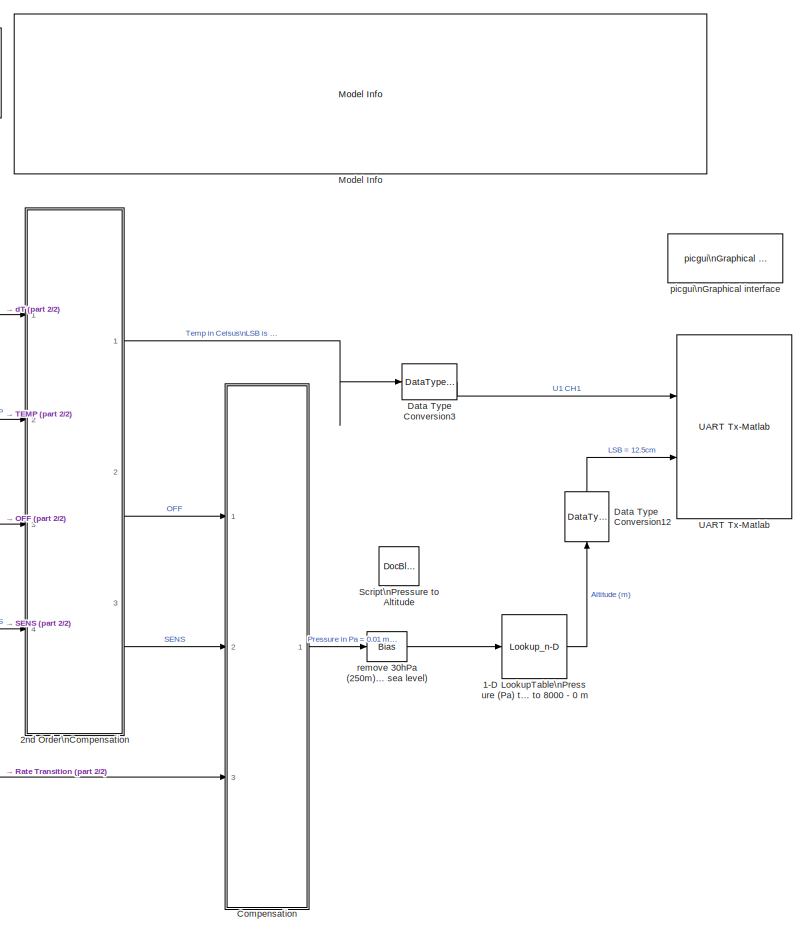
[diagram: root canvas - part 1/2, right side, full height]
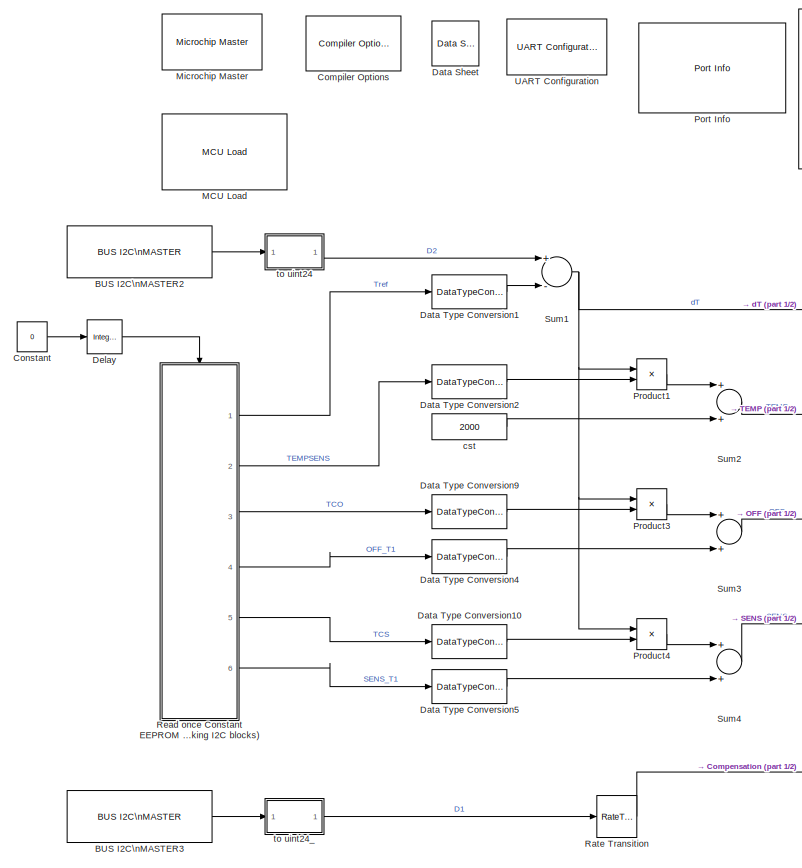
[diagram: root canvas - part 2/2, left side, full height]
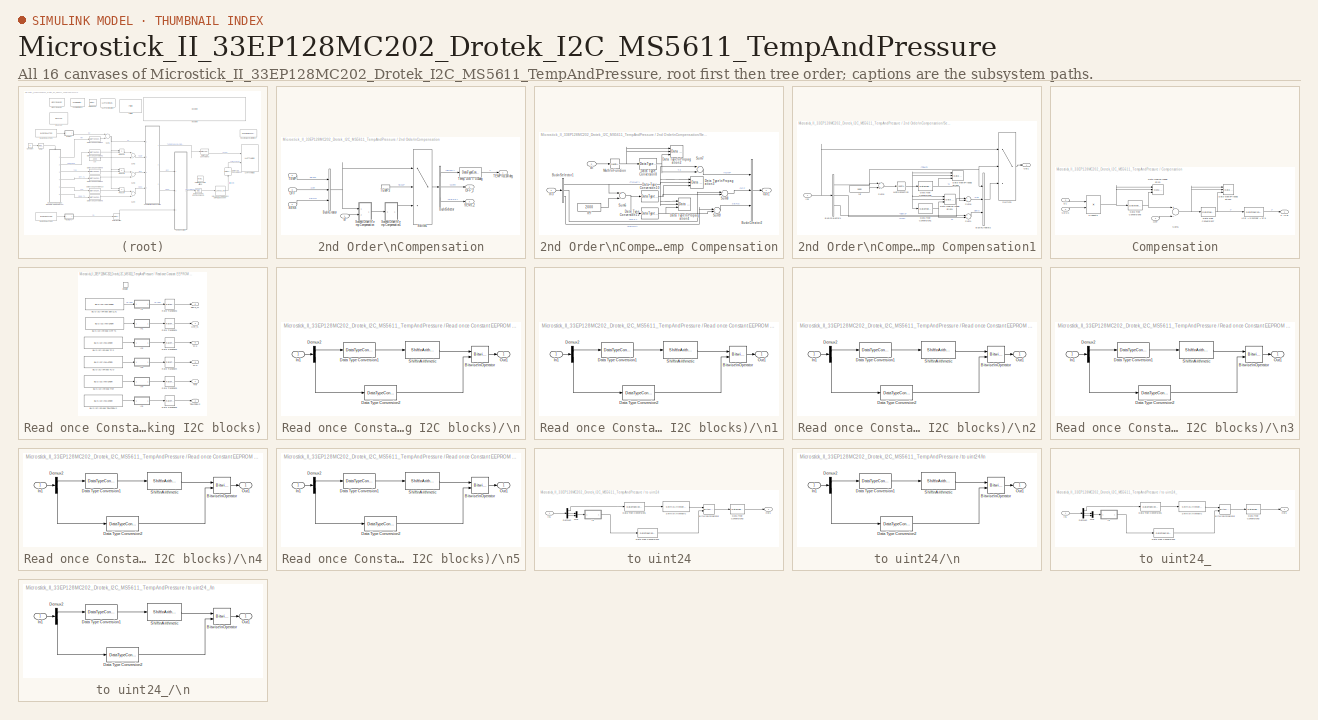
[diagram: thumbnail index - all 16 canvases of the model, root first then tree order]
MODEL Microstick_II_33EP128MC202_Drotek_I2C_MS5611_TempAndPressure
KIND model
BLOCK [Lookup_n-D] 1-D LookupTable\nPressure (Pa) to Altitude (m)\nValidate from 35000 to 101325 Pa \nequiv to 8000 - 0 m
  BeginIndexSearchUsingPreviousIndexResult = on
  BreakpointsForDimension1 = [  35000  35358  35799  36218  36647  37086  37463  37867  38284  38639  39007  39435  39920  40363  40841  41285  41707  42156  42664  43168  43649  44137  44662  45105  45550  46088  46633  47208  47742  48308  48833  49375  49917  50484  51077  51694  52269  52806  53380  53923  54482  55078  55692  56323  56892  57456  58035  58713  59333  59883  60532  61206  61808  62536  63274  63867  64453...<+297ch>
  BreakpointsForDimension1DataTypeStr = uint32
  ExtrapMethod = None - Clip
  FractionDataTypeStr = fixdt(1,32,18)
  IndexSearchMethod = Linear search
  IntermediateResultsDataTypeStr = fixdt(1,32,18)
  NumberOfTableDimensions = 1
  OutDataTypeStr = fixdt(0,16,3)
  Ports = [1, 1]
  RndMeth = Simplest
  SID = 403
  Table = floor(1e3*[  8.117494150205507  8.047307468888779  7.961635148104636  7.881024806288224  7.799269215467364  7.716406273634682  7.645877610153606  7.570932893861216  7.494252579165659  7.429504315425707  7.362891489741167  7.286054950638820  7.199797399557283  7.121747962190449  7.038306271811481  6.961505205390625  6.889127040412314  6.812766274429189  6.727161471881082  6.643042514664310  6.56350...<+1494ch>
  TableDataTypeStr = fixdt(0,16,3)
  UseLastTableValue = on
BLOCK [SubSystem] 2nd Order\nCompensation
  FunctionWithSeparateData = off
  MaskHideContents = off
  MinAlgLoopOccurrences = off
  Opaque = off
  Ports = [4, 3]
  PropExecContextOutsideSubsystem = off
  RTWSystemCode = Auto
  RequestExecContextInheritance = off
  SID = 383
BLOCK [BusCreator] 2nd Order\nCompensation/Bus\nCreator
  DisplayOption = bar
  Inputs = 3
  Ports = [3, 1]
  SID = 136
BLOCK [BusSelector] 2nd Order\nCompensation/Bus\nSelector
  OutputSignals = TEMP,OFF,SENS
  Ports = [1, 3]
  SID = 137
BLOCK [Inport] 2nd Order\nCompensation/OFF
  IconDisplay = Port number
  Port = 3
  SID = 385
BLOCK [Outport] 2nd Order\nCompensation/OFF_2
  IconDisplay = Port number
  Port = 2
  SID = 389
BLOCK [Inport] 2nd Order\nCompensation/SENS
  IconDisplay = Port number
  Port = 4
  SID = 386
BLOCK [Outport] 2nd Order\nCompensation/SENS_2
  IconDisplay = Port number
  Port = 3
  SID = 390
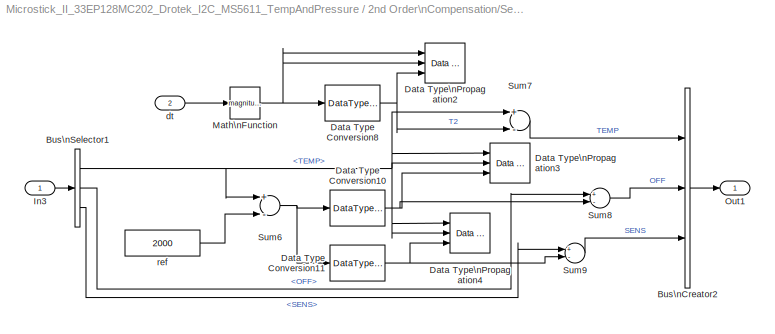
BLOCK [SubSystem] 2nd Order\nCompensation/Second Order\nTemp Compensation
  FunctionWithSeparateData = off
  MaskHideContents = off
  MinAlgLoopOccurrences = off
  Opaque = off
  Ports = [2, 1]
  PropExecContextOutsideSubsystem = off
  RTWSystemCode = Auto
  RequestExecContextInheritance = off
  SID = 175
BLOCK [BusCreator] 2nd Order\nCompensation/Second Order\nTemp Compensation/Bus\nCreator2
  DisplayOption = bar
  Inputs = 3
  Ports = [3, 1]
  SID = 178
BLOCK [BusSelector] 2nd Order\nCompensation/Second Order\nTemp Compensation/Bus\nSelector1
  OutputSignals = TEMP,OFF,SENS
  Ports = [1, 3]
  SID = 179
BLOCK [DataTypeConversion] 2nd Order\nCompensation/Second Order\nTemp Compensation/Data Type Conversion10
  ConvertRealWorld = Stored Integer (SI)
  RndMeth = Floor
  SID = 183
  SaturateOnIntegerOverflow = off
BLOCK [DataTypeConversion] 2nd Order\nCompensation/Second Order\nTemp Compensation/Data Type Conversion11
  ConvertRealWorld = Stored Integer (SI)
  RndMeth = Floor
  SID = 184
  SaturateOnIntegerOverflow = off
BLOCK [DataTypeConversion] 2nd Order\nCompensation/Second Order\nTemp Compensation/Data Type Conversion8
  ConvertRealWorld = Stored Integer (SI)
  RndMeth = Floor
  SID = 185
  SaturateOnIntegerOverflow = off
BLOCK [Reference] 2nd Order\nCompensation/Second Order\nTemp Compensation/Data Type\nPropagation2  REF=simulink/Signal\nAttributes/Data Type\nPropagation
  BiasAdd = 0
  BiasBase = Bias1
  BiasMult = 0
  IfRefDouble = double
  IfRefSingle = single
  IsSigned = IsSigned1
  NumBitsAdd = 0
  NumBitsAllowFinal = 1:128
  NumBitsBase = NumBits1
  NumBitsMult = 1
  Ports = [3]
  PropDataType = fixdt(1, 16)
  PropDataTypeMode = Inherit via propagation rule
  PropScaling = 2^-10
  PropScalingMode = Inherit via propagation rule
  SID = 180
  SlopeAdd = 0
  SlopeBase = min([Slope1 Slope2])
  SlopeMult = 2^-31
  SourceBlock = simulink/Signal\nAttributes/Data Type\nPropagation
  SourceType = Data Type Propagation
  ValuesUsedBestPrec = [5 -7]
BLOCK [Reference] 2nd Order\nCompensation/Second Order\nTemp Compensation/Data Type\nPropagation3  REF=simulink/Signal\nAttributes/Data Type\nPropagation
  BiasAdd = 0
  BiasBase = Bias1
  BiasMult = 0
  IfRefDouble = double
  IfRefSingle = single
  IsSigned = IsSigned1
  NumBitsAdd = 0
  NumBitsAllowFinal = 1:128
  NumBitsBase = NumBits1
  NumBitsMult = 1
  Ports = [3]
  PropDataType = fixdt(1, 16)
  PropDataTypeMode = Inherit via propagation rule
  PropScaling = 2^-10
  PropScalingMode = Inherit via propagation rule
  SID = 181
  SlopeAdd = 0
  SlopeBase = Slope1
  SlopeMult = 5/2
  SourceBlock = simulink/Signal\nAttributes/Data Type\nPropagation
  SourceType = Data Type Propagation
  ValuesUsedBestPrec = [5 -7]
BLOCK [Reference] 2nd Order\nCompensation/Second Order\nTemp Compensation/Data Type\nPropagation4  REF=simulink/Signal\nAttributes/Data Type\nPropagation
  BiasAdd = 0
  BiasBase = Bias1
  BiasMult = 0
  IfRefDouble = double
  IfRefSingle = single
  IsSigned = IsSigned1
  NumBitsAdd = 0
  NumBitsAllowFinal = 1:128
  NumBitsBase = NumBits1
  NumBitsMult = 1
  Ports = [3]
  PropDataType = fixdt(1, 16)
  PropDataTypeMode = Inherit via propagation rule
  PropScaling = 2^-10
  PropScalingMode = Inherit via propagation rule
  SID = 182
  SlopeAdd = 0
  SlopeBase = Slope1
  SlopeMult = 5/4
  SourceBlock = simulink/Signal\nAttributes/Data Type\nPropagation
  SourceType = Data Type Propagation
  ValuesUsedBestPrec = [5 -7]
BLOCK [Inport] 2nd Order\nCompensation/Second Order\nTemp Compensation/In3
  IconDisplay = Port number
  SID = 176
BLOCK [Math] 2nd Order\nCompensation/Second Order\nTemp Compensation/Math\nFunction
  Operator = magnitude^2
  OutDataTypeMode = Inherit via back propagation
  OutDataTypeStr = Inherit: Inherit via back propagation
  Ports = [1, 1]
  SID = 186
BLOCK [Outport] 2nd Order\nCompensation/Second Order\nTemp Compensation/Out1
  IconDisplay = Port number
  SID = 192
BLOCK [Sum] 2nd Order\nCompensation/Second Order\nTemp Compensation/Sum6
  AccumDataTypeStr = Inherit: Same as first input
  InputSameDT = off
  Inputs = +-
  OutDataTypeMode = Same as accumulator
  OutDataTypeStr = Inherit: Same as accumulator
  Ports = [2, 1]
  SID = 187
  SaturateOnIntegerOverflow = off
BLOCK [Sum] 2nd Order\nCompensation/Second Order\nTemp Compensation/Sum7
  AccumDataTypeStr = Inherit: Same as first input
  InputSameDT = off
  Inputs = +-
  OutDataTypeMode = Same as accumulator
  OutDataTypeStr = Inherit: Same as accumulator
  Ports = [2, 1]
  SID = 188
  SaturateOnIntegerOverflow = off
BLOCK [Sum] 2nd Order\nCompensation/Second Order\nTemp Compensation/Sum8
  AccumDataTypeStr = Inherit: Same as first input
  InputSameDT = off
  Inputs = +-
  OutDataTypeMode = Same as accumulator
  OutDataTypeStr = Inherit: Same as accumulator
  Ports = [2, 1]
  SID = 189
  SaturateOnIntegerOverflow = off
BLOCK [Sum] 2nd Order\nCompensation/Second Order\nTemp Compensation/Sum9
  AccumDataTypeStr = Inherit: Same as first input
  InputSameDT = off
  Inputs = +-
  OutDataTypeMode = Same as accumulator
  OutDataTypeStr = Inherit: Same as accumulator
  Ports = [2, 1]
  SID = 190
  SaturateOnIntegerOverflow = off
BLOCK [Inport] 2nd Order\nCompensation/Second Order\nTemp Compensation/dt
  IconDisplay = Port number
  Port = 2
  SID = 177
BLOCK [Constant] 2nd Order\nCompensation/Second Order\nTemp Compensation/ref
  OutDataTypeMode = uint16
  OutDataTypeStr = uint16
  SID = 191
  Value = 2000
BLOCK [SubSystem] 2nd Order\nCompensation/Second Order\nTemp Compensation1
  FunctionWithSeparateData = off
  MaskHideContents = off
  MinAlgLoopOccurrences = off
  Opaque = off
  Ports = [1, 1]
  PropExecContextOutsideSubsystem = off
  RTWSystemCode = Auto
  RequestExecContextInheritance = off
  SID = 193
BLOCK [BusCreator] 2nd Order\nCompensation/Second Order\nTemp Compensation1/Bus\nCreator2
  DisplayOption = bar
  Inputs = 3
  Ports = [3, 1]
  SID = 195
BLOCK [BusSelector] 2nd Order\nCompensation/Second Order\nTemp Compensation1/Bus\nSelector1
  OutputSignals = TEMP,OFF,SENS
  Ports = [1, 3]
  SID = 196
BLOCK [DataTypeConversion] 2nd Order\nCompensation/Second Order\nTemp Compensation1/Data Type Conversion1
  ConvertRealWorld = Stored Integer (SI)
  RndMeth = Floor
  SID = 199
  SaturateOnIntegerOverflow = off
BLOCK [DataTypeConversion] 2nd Order\nCompensation/Second Order\nTemp Compensation1/Data Type Conversion8
  ConvertRealWorld = Stored Integer (SI)
  RndMeth = Floor
  SID = 200
  SaturateOnIntegerOverflow = off
BLOCK [Reference] 2nd Order\nCompensation/Second Order\nTemp Compensation1/Data Type\nPropagation1  REF=simulink/Signal\nAttributes/Data Type\nPropagation
  BiasAdd = 0
  BiasBase = Bias1
  BiasMult = 0
  IfRefDouble = double
  IfRefSingle = single
  IsSigned = IsSigned1
  NumBitsAdd = 0
  NumBitsAllowFinal = 1:128
  NumBitsBase = NumBits1
  NumBitsMult = 1
  Ports = [3]
  PropDataType = fixdt(1, 16)
  PropDataTypeMode = Inherit via propagation rule
  PropScaling = 2^-10
  PropScalingMode = Inherit via propagation rule
  SID = 197
  SlopeAdd = 0
  SlopeBase = min([Slope1 Slope2])
  SlopeMult = 11/2
  SourceBlock = simulink/Signal\nAttributes/Data Type\nPropagation
  SourceType = Data Type Propagation
  ValuesUsedBestPrec = [5 -7]
BLOCK [Reference] 2nd Order\nCompensation/Second Order\nTemp Compensation1/Data Type\nPropagation2  REF=simulink/Signal\nAttributes/Data Type\nPropagation
  BiasAdd = 0
  BiasBase = Bias1
  BiasMult = 0
  IfRefDouble = double
  IfRefSingle = single
  IsSigned = IsSigned1
  NumBitsAdd = 0
  NumBitsAllowFinal = 1:128
  NumBitsBase = NumBits1
  NumBitsMult = 1
  Ports = [3]
  PropDataType = fixdt(1, 16)
  PropDataTypeMode = Inherit via propagation rule
  PropScaling = 2^-10
  PropScalingMode = Inherit via propagation rule
  SID = 198
  SlopeAdd = 0
  SlopeBase = min([Slope1 Slope2])
  SlopeMult = 7
  SourceBlock = simulink/Signal\nAttributes/Data Type\nPropagation
  SourceType = Data Type Propagation
  ValuesUsedBestPrec = [5 -7]
BLOCK [Inport] 2nd Order\nCompensation/Second Order\nTemp Compensation1/In3
  IconDisplay = Port number
  SID = 194
BLOCK [Math] 2nd Order\nCompensation/Second Order\nTemp Compensation1/Math\nFunction
  Operator = magnitude^2
  OutDataTypeMode = Inherit via back propagation
  OutDataTypeStr = Inherit: Inherit via back propagation
  Ports = [1, 1]
  SID = 201
BLOCK [Outport] 2nd Order\nCompensation/Second Order\nTemp Compensation1/Out1
  IconDisplay = Port number
  SID = 207
BLOCK [Sum] 2nd Order\nCompensation/Second Order\nTemp Compensation1/Sum1
  AccumDataTypeStr = Inherit: Same as first input
  InputSameDT = off
  OutDataTypeMode = Same as accumulator
  OutDataTypeStr = Inherit: Same as accumulator
  Ports = [2, 1]
  SID = 202
  SaturateOnIntegerOverflow = off
BLOCK [Sum] 2nd Order\nCompensation/Second Order\nTemp Compensation1/Sum6
  AccumDataTypeStr = Inherit: Same as first input
  InputSameDT = off
  OutDataTypeMode = Same as accumulator
  OutDataTypeStr = Inherit: Same as accumulator
  Ports = [2, 1]
  SID = 203
  SaturateOnIntegerOverflow = off
BLOCK [Sum] 2nd Order\nCompensation/Second Order\nTemp Compensation1/Sum8
  AccumDataTypeStr = Inherit: Same as first input
  InputSameDT = off
  OutDataTypeMode = Same as accumulator
  OutDataTypeStr = Inherit: Same as accumulator
  Ports = [2, 1]
  SID = 204
  SaturateOnIntegerOverflow = off
BLOCK [Switch] 2nd Order\nCompensation/Second Order\nTemp Compensation1/Switch1
  SID = 205
  SaturateOnIntegerOverflow = off
  Threshold = -15
BLOCK [Constant] 2nd Order\nCompensation/Second Order\nTemp Compensation1/ref
  OutDataTypeMode = uint16
  OutDataTypeStr = uint16
  SID = 206
  Value = 1500
BLOCK [Switch] 2nd Order\nCompensation/Switch1
  SID = 213
  SaturateOnIntegerOverflow = off
  Threshold = 20
BLOCK [Inport] 2nd Order\nCompensation/TEMP
  IconDisplay = Port number
  Port = 2
  SID = 384
BLOCK [InportShadow] 2nd Order\nCompensation/TEMP3
  IconDisplay = Port number
  LatchByDelayingOutsideSignal = off
  LatchInputForFeedbackSignals = off
  Port = 2
  SID = 387
BLOCK [Outport] 2nd Order\nCompensation/TEMP\n1//100 deg
  IconDisplay = Port number
  SID = 388
BLOCK [DataTypeConversion] 2nd Order\nCompensation/Temp, LSB = 0.01deg
  OutDataTypeMode = int16
  OutDataTypeStr = int16
  RndMeth = Floor
  SID = 402
  SaturateOnIntegerOverflow = off
BLOCK [Inport] 2nd Order\nCompensation/dT
  IconDisplay = Port number
  SID = 391
BLOCK [Reference] BUS I2C\nMASTER2  REF=MCHP_Blockset/BUS I2C/BUS I2C\nMASTER
  BlockingMode = off
  I2CRef = 1
  I2C_IntPriority = 5
  I2Csequence_num = [BFF0000000000000 40E0600000000000 412E848000000000 412E9EA0F694FA01]$[4070000000000000]$[3FF0000000000000 40E0200000000000 40F86A0000000000 40F866E066594CA2]$[4040000000000000 0000000000000000 0000000000000000 405DC00000000000]$[4050000000000000 3FF0000000000000 0000000000000000 0000000000000000]$[4008000000000000 40E0200000000000 40F86A0000000000 40F866E066594CA2]$[4060000000000000 4008000000000...<+214ch>
  I2Csequence_txt = Initial-Configuration$     ---     $Start$Write Address:{[0x77]}    % Componnent address$Write Data (x1)  Write:{[0x00]}      % ADC Read$Re-Start$Read Data (x3)  Read:{D2}    % Read D2$Re-Start$Write Data (x1)  Write:{[0x48]}      % Cmd conversion D1 (OSR 4096)$Stop
  InitialConfigurationNum = 0
  MCHP_MASTERLINK = Microstick_II_33EP128MC202_Drotek_I2C_MS5611_TempAndPressure/Microchip Master
  MCHP_PORT = {I2C 1 Clock}{SCL1}13:0:B8;{I2C 1 SDA}{SDA1}13:0:B9;
  ORDERING = 0
  PIN_SCL_TXT = B8 / Pin[17]
  PIN_SDA_TXT = B9 / Pin[18]
  Ports = [0, 1]
  SID = 134
  S_INPUT = [5  5]
  S_INPUT_Size = [2  2]
  S_OUTPUT = [5]
  S_OUTPUT_Size = [4]
  SampleTime = [.02 0]
  SourceBlock = MCHP_Blockset/BUS I2C/BUS I2C\nMASTER
  SourceType = I2C Driver
BLOCK [Reference] BUS I2C\nMASTER3  REF=MCHP_Blockset/BUS I2C/BUS I2C\nMASTER
  BlockingMode = off
  I2CRef = 1
  I2C_IntPriority = 5
  I2Csequence_num = [BFF0000000000000 40E0600000000000 412E848000000000 412E9EA0F694FA01]$[4070000000000000]$[3FF0000000000000 40E0200000000000 40F86A0000000000 40F866E066594CA2]$[4040000000000000 0000000000000000 0000000000000000 405DC00000000000]$[4050000000000000 3FF0000000000000 0000000000000000 0000000000000000]$[4008000000000000 40E0200000000000 40F86A0000000000 40F866E066594CA2]$[4060000000000000 4008000000000...<+214ch>
  I2Csequence_txt = Initial-Configuration$     ---     $Start$Write Address:{[0x77]}    % Componnent address$Write Data (x1)  Write:{[0x00]}      % ADC Read$Re-Start$Read Data (x3)  Read:{D1}    % Read D1$Re-Start$Write Data (x1)  Write:{[0x58]}      % Cmd conversion D2 (OSR 4096)$Stop
  InitialConfigurationNum = 0
  MCHP_MASTERLINK = Microstick_II_33EP128MC202_Drotek_I2C_MS5611_TempAndPressure/Microchip Master
  MCHP_PORT = {I2C 1 Clock}{SCL1}13:0:B8;{I2C 1 SDA}{SDA1}13:0:B9;
  ORDERING = 0
  PIN_SCL_TXT = B8 / Pin[17]
  PIN_SDA_TXT = B9 / Pin[18]
  Ports = [0, 1]
  SID = 135
  S_INPUT = [5  5]
  S_INPUT_Size = [2  2]
  S_OUTPUT = [5]
  S_OUTPUT_Size = [4]
  SampleTime = [.02 0.01]
  SourceBlock = MCHP_Blockset/BUS I2C/BUS I2C\nMASTER
  SourceType = I2C Driver
BLOCK [SubSystem] Compensation
  FunctionWithSeparateData = off
  MaskHideContents = off
  MinAlgLoopOccurrences = off
  Opaque = off
  Ports = [3, 1]
  PropExecContextOutsideSubsystem = off
  RTWSystemCode = Auto
  RequestExecContextInheritance = off
  SID = 394
BLOCK [Inport] Compensation/D1
  IconDisplay = Port number
  Port = 3
  SID = 395
BLOCK [DataTypeConversion] Compensation/Data Type Conversion6
  ConvertRealWorld = Stored Integer (SI)
  RndMeth = Floor
  SID = 145
  SaturateOnIntegerOverflow = off
BLOCK [DataTypeConversion] Compensation/Data Type Conversion7
  ConvertRealWorld = Stored Integer (SI)
  RndMeth = Floor
  SID = 146
  SaturateOnIntegerOverflow = off
BLOCK [Reference] Compensation/Data Type\nPropagation  REF=simulink/Signal\nAttributes/Data Type\nPropagation
  BiasAdd = 0
  BiasBase = Bias1
  BiasMult = 1
  IfRefDouble = double
  IfRefSingle = single
  IsSigned = IsSigned1 or IsSigned2
  NumBitsAdd = 0
  NumBitsAllowFinal = 1:128
  NumBitsBase = NumBits1
  NumBitsMult = 1
  Ports = [3]
  PropDataType = fixdt(1, 16)
  PropDataTypeMode = Inherit via propagation rule
  PropScaling = 2^-10
  PropScalingMode = Inherit via propagation rule
  SID = 138
  SlopeAdd = 0
  SlopeBase = min([Slope1 Slope2])
  SlopeMult = 2^-21
  SourceBlock = simulink/Signal\nAttributes/Data Type\nPropagation
  SourceType = Data Type Propagation
  ValuesUsedBestPrec = [5 -7]
BLOCK [Reference] Compensation/Data Type\nPropagation1  REF=simulink/Signal\nAttributes/Data Type\nPropagation
  BiasAdd = 0
  BiasBase = Bias1
  BiasMult = 1
  IfRefDouble = double
  IfRefSingle = single
  IsSigned = IsSigned1 or IsSigned2
  NumBitsAdd = 0
  NumBitsAllowFinal = 1:128
  NumBitsBase = NumBits1
  NumBitsMult = 1
  Ports = [3]
  PropDataType = fixdt(1, 16)
  PropDataTypeMode = Inherit via propagation rule
  PropScaling = 2^-10
  PropScalingMode = Inherit via propagation rule
  SID = 139
  SlopeAdd = 0
  SlopeBase = min([Slope1 Slope2])
  SlopeMult = 2^-15
  SourceBlock = simulink/Signal\nAttributes/Data Type\nPropagation
  SourceType = Data Type Propagation
  ValuesUsedBestPrec = [5 -7]
BLOCK [DataTypeConversion] Compensation/LSB = 0.01mbar = 1Pa
  OutDataTypeMode = int32
  OutDataTypeStr = int32
  RndMeth = Floor
  SID = 401
  SaturateOnIntegerOverflow = off
BLOCK [Inport] Compensation/OFF
  IconDisplay = Port number
  SID = 397
BLOCK [Outport] Compensation/P (Pa)
  IconDisplay = Port number
  SID = 398
BLOCK [Product] Compensation/Product2
  InputSameDT = off
  OutDataType = fixdt(1,64,6)
  OutDataTypeMode = Specify via dialog
  OutDataTypeStr = fixdt(1,64,6)
  OutMax = 6442352640*(2^24-1)
  OutMin = -4294836225*(2^24-1)
  Ports = [2, 1]
  RndMeth = Floor
  SID = 173
  SaturateOnIntegerOverflow = off
BLOCK [Inport] Compensation/SENS
  IconDisplay = Port number
  Port = 2
  SID = 396
BLOCK [Sum] Compensation/Sum5
  AccumDataTypeStr = Inherit: Same as first input
  InputSameDT = off
  Inputs = +-
  OutDataTypeMode = Same as accumulator
  OutDataTypeStr = Inherit: Same as accumulator
  Ports = [2, 1]
  SID = 212
  SaturateOnIntegerOverflow = off
BLOCK [Reference] Compiler Options  REF=MCHP_Blockset/System Configuration/Compiler Options
  AssemblyListing = off
  COMP_LIST = Dynamic Options
  COMP_LIST_TXT = xc16 - v1.26
  DEBUG_INFO = off
  HEAP_SIZE = 0
  LATEST_CMPLR = on
  MCHP_MASTERLINK = Microstick_II_33EP128MC202_Drotek_I2C_MS5611_TempAndPressure/Microchip Master
  MCHP_MULTITHREAD_COMPILATION = on
  MCODE = is less than 32768 (faster)
  MCONST = in data memory
  MDATA = Use only memory below address 8192 (faster)
  MPLAB_LINKLIB = default
  MPLAB_LINKLIB1 = default
  MSCALAR = Use only memory below address 8192 (faster)
  OMF = elf
  OMIT_FRAME_POINTER = off
  OPTIMIZATION_LEVEL = 3
  PROCEDURAL_ABSTRACTION = off
  Ports = []
  Priority = 1
  ProduceHexOutput = on
  SID = 2
  SourceBlock = MCHP_Blockset/System Configuration/Compiler Options
  UNROLL_LOOPS = on
  USE_64BIT_DOUBLE = off
BLOCK [Constant] Constant
  SID = 361
  Value = 0
BLOCK [Reference] Data Sheet  REF=MCHP_Blockset/System Info/Data Sheet
  AttributesFormatString = %<cpy_MCHP_Id>
  DOC_FileLastCheckTime = [0 0 0 0 0 0]
  DOC_MCHP_Id = 33FJ64MC802
  DOC_Type = datasheet
  MCHP_MASTERLINK = Microstick_II_33EP128MC202_Drotek_I2C_MS5611_TempAndPressure/Microchip Master
  Ports = []
  SID = 6
  SourceBlock = MCHP_Blockset/System Info/Data Sheet
  cpy_MCHP_Id = 33EP128MC202
BLOCK [DataTypeConversion] Data Type Conversion1
  ConvertRealWorld = Stored Integer (SI)
  OutDataType = fixdt(0,16,-8)
  OutDataTypeMode = Specify via dialog
  OutDataTypeStr = fixdt(0,16,-8)
  RndMeth = Floor
  SID = 140
  SaturateOnIntegerOverflow = off
BLOCK [DataTypeConversion] Data Type Conversion10
  ConvertRealWorld = Stored Integer (SI)
  OutDataType = fixdt(0,16,8)
  OutDataTypeMode = Specify via dialog
  OutDataTypeStr = fixdt(0,16,8)
  RndMeth = Floor
  SID = 356
  SaturateOnIntegerOverflow = off
BLOCK [DataTypeConversion] Data Type Conversion12
  ConvertRealWorld = Stored Integer (SI)
  OutDataTypeMode = uint16
  OutDataTypeStr = uint16
  RndMeth = Floor
  SID = 404
  SaturateOnIntegerOverflow = off
BLOCK [DataTypeConversion] Data Type Conversion2
  ConvertRealWorld = Stored Integer (SI)
  OutDataType = fixdt(0,16,23)
  OutDataTypeMode = Specify via dialog
  OutDataTypeStr = fixdt(0,16,23)
  RndMeth = Floor
  SID = 141
  SaturateOnIntegerOverflow = off
BLOCK [DataTypeConversion] Data Type Conversion3
  OutDataTypeMode = int16
  OutDataTypeStr = int16
  RndMeth = Floor
  SID = 142
  SaturateOnIntegerOverflow = off
BLOCK [DataTypeConversion] Data Type Conversion4
  ConvertRealWorld = Stored Integer (SI)
  OutDataType = fixdt(0,16,-16)
  OutDataTypeMode = Specify via dialog
  OutDataTypeStr = fixdt(0,16,-16)
  RndMeth = Floor
  SID = 143
  SaturateOnIntegerOverflow = off
BLOCK [DataTypeConversion] Data Type Conversion5
  ConvertRealWorld = Stored Integer (SI)
  OutDataType = fixdt(0,16,-15)
  OutDataTypeMode = Specify via dialog
  OutDataTypeStr = fixdt(0,16,-15)
  RndMeth = Floor
  SID = 144
  SaturateOnIntegerOverflow = off
BLOCK [DataTypeConversion] Data Type Conversion9
  ConvertRealWorld = Stored Integer (SI)
  OutDataType = fixdt(0,16,7)
  OutDataTypeMode = Specify via dialog
  OutDataTypeStr = fixdt(0,16,7)
  RndMeth = Floor
  SID = 353
  SaturateOnIntegerOverflow = off
BLOCK [Reference] Delay  REF=simulink/Discrete/Integer Delay
  NumDelays = 1
  Ports = [1, 1]
  SID = 430
  SourceBlock = simulink/Discrete/Integer Delay
  SourceType = Integer Delay
  samptime = -1
  vinit = 1
BLOCK [Reference] MCU Load  REF=MCHP_Blockset/Profiling/MCU Load
  Info = Timer 2:  Resol: 133.304768(ns)  -  Max: 8.73626(ms)
  MCHP_COMPILED_INFO = CompiledSampleTime= [Inf   0 ];CompiledInportDataTypes=[ ];CompiledInportDataWidth=[];
  MCHP_MASTERLINK = Microstick_II_33EP128MC202_Drotek_I2C_MS5611_TempAndPressure/Microchip Master
  MCHP_PORT = {MCU Load Pin}{MCU_Load}0:1:A0;
  MCHP_TIMER_REQUEST = {MCU_Load}{MCU_Load}21:5:0:0:[]:524288;
  MCHP_TIMER_RESULT = [2 65535 ]
  MCULoadMeasure = off
  MCULoadPin = Dynamic Options
  MCULoadPin_TXT = A0 / Pin[2]
  Ports = []
  SID = 133
  SampleTime = -1
  SourceBlock = MCHP_Blockset/Profiling/MCU Load
  SourceType = MCU Load (Profile execution time)
  TIMER_Resolution = Dynamic Options
  TIMER_Resolution_TXT = Resol: 0.1333(us)  -  Max: 8.74(ms)
BLOCK [Reference] Microchip Master  REF=MCHP_Blockset/System Configuration/Microchip Master
  ACTIV_PLL = on
  ACTIV_PLL_spd = on
  AIVTDIS = Disable Alternate Vector Table
  ALTADREF = AVREF+/AVREF- are mapped to RA9/RA10
  ALTCMPI = C1INC is on RB13; C2INC is on RB9 and C3INC is on RA0
  ALTCVREF = CVREF+/CVREF- are mapped to RA9/RA10
  ALTI2C = I2C mapped to SDA1/SCL1 pins
  ALTI2C1 = I2C1 mapped to ASDA1/ASCL1 pins
  ALTI2C2 = I2C2 mapped to SDA2/SCL2 pins
  ALTPMP = EPMP pins are in default location mode
  ALTQIO = QEA1; QEB1; INDX1 are selected as inputs to QEI1
  ALTRB6 = Append the RP6/ASCL1/PMPD6 functions of RB6 to RA1 pin functions
  ALTSS1 = SS1A is selected as the I/O pin for SPI1
  ALTVREF = Voltage reference input; ADC =RA9/RA10 Comparator =RA9;RA10
  APL = Aux Flash Code protect is disabled
  APLK = Aux Flash Write Protection or Code Protection is Enabled
  ATMOD8 = Not used
  AWRP = Aux Flash may be written
  BACKBUG = Not used
  BKBUG = Device resets into Operational mode
  BODENV = 2.7V
  BOOTISA = Boot code and Exception code is MIPS32
  BOREN = Disable
  BOREN0 = Enabled
  BOREN1 = BOR Enabled [When BOREN=1]
  BORV = Brown-out Reset set at 2.0V
  BSEN = No Boot Segment
  BSLIM = Not used
  BSS = No boot program Flash segment
  BSS2 = No Boot Segment
  BTMODE = Device is in Single Boot (legacy) mode
  BTSWP = Not used
  BUSYFLAG = Dynamic Options
  BUSYFLAG_TXT = None
  BWP = Protection Disabled
  BWRP = Boot Segment may be written
  CMPPOL0 = Hysteresis is applied to falling edge
  CMPPOL1 = Hysteresis is applied to falling edge
  COE = Reset Into Operational Mode
  CP = Protection Disabled
  CSEQ = Not used
  CSS = No Protection (other than CWRP)
  CTXT1 = Not Assigned
  CTXT2 = Not Assigned
  CWRP = Configuration Segment may be written
  DBCC = Not used
  DBGPER = Allow CPU access to all permission regions
  DEBUG = Debugger is disabled
  DFMCY = Not used
  DISUVREG = Regulator is disabled
  DMTCNT = 2^31 (2147483648)
  DMTEN = Dead Man Timer is Enabled and cannot be disabled by software
  DMTINTV = Window/Interval value is 127/128 counter value
  DMTIVT = Not used
  DSBOREN = Deep Sleep BOR enabled in Deep Sleep
  DSLPBOR = Deep Sleep BOR enabled in Deep Sleep
  DSSWEN = Deep Sleep is controlled by the register bit DSEN
  DSWDTEN = DSWDT enabled
  DSWDTOSC = DSWDT uses Low Power RC Oscillator (LPRC)
  DSWDTPS = 1:2;147;483;648 (25.7 Days)
  EBS = No Boot EEPROM
  EJTAGBEN = Normal EJTAG functionality
  ESS = No Segment Data EEPROM
  EXTDDRSIZE = External DDR2 Size is 128 MB
  FCANIO = Default CAN I/O
  FCKSM = Clock switching is enabled;Fail-safe Clock Monitor is disabled
  FCKSMEN = Sw Disabled; Mon Disabled
  FDMTEN = Deadman Timer is disabled
  FECCCON = ECC and Dynamic ECC are disabled (ECCCON bits are writable)
  FETHIO = Default Ethernet I/O
  FMIIEN = MII Enabled
  FNOSC = Internal Fast RC (FRC)
  FOS = Internal Fast RC
  FOSFPR = HS3 w/PLL 16x
  FPBDIV = Pb_Clk is Sys_Clk/8
  FPLLICLK = FRC is input to the System PLL
  FPLLIDIV = 12x Divider
  FPLLMUL = 24x Multiplier
  FPLLMULT = PLL Multiply by 128
  FPLLODIV = PLL Divide by 256
  FPLLRNG = 34-68 MHz Input
  FPR = ECIO w/ PLL 16x
  FPWRT = 64ms
  FRANGE = High Range
  FSLEEP = Flash is powered down when the device is in Sleep mode
  FSOSCEN = Enabled
  FSRSSEL = SRS Priority 7
  FUSBIDIO = Controlled by the USB Module
  FVBUSONIO = Controlled by USB Module
  FWDTEN = Disable
  FWDTWINSZ = Window size is 25%
  FWPSA = 1:512
  FWPSA0 = 1:128
  FWPSB = 1:16
  GCP = General Segment Code protect is disabled
  GSS = User program memory is not code-protected
  GSS0 = No protection
  GSSK = General Segment Write Protection or Code Protection is Enabled
  GWRP = General Segment may be written
  HPOL = Active High
  HYST0 = 45 mV Hysteresis
  HYST1 = 45 mV Hysteresis
  I2C1SEL = Use Default SCL1/SDA1 Pins For I2C1
  I2C2SEL = I2C2 is multiplexed to SDA2/RA3 and SCL2/RA2
  ICESEL = Communicate on PGEC1/PGED1
  ICS = Communicate on PGEC1 and PGED1
  IESO = Start up with FRC; then switch
  IOL1WAY = Allow only one reconfiguration
  JTAGEN = Disable
  LPCFG = Disabled - regardless of RETEN
  LPOL = Active High
  LPRCSEL = High Power; High Accuracy Mode
  LVRCFG = Low Voltage regulator is not available
  MCHPVAR = MCHP.fcy.periph=MCHP_Fun.Hex2num('[418C9DC9C9249248]');MCHP.fcy.MIPS=MCHP_Fun.Hex2num('[418C9DC9C9249248]');MCHP.PowerSave=0;MCHP.TimeStepFactor=MCHP_Fun.Hex2num('[3FEFFFFE00CDCD2A]');MCHP.TimeStep_Timer=1;MCHP.NTIMERS=5;MCHP.id.name='33EP128MC202';MCHP.id.N=reshape([33 128 202],1,3);MCHP.id.L=reshape({ 'EP','MC',''},1,3);MCHP.id.Arch=3;MCHP.periph.PPS.reg_RPINRx=reshape([-1 1 1 -1 -1 -1 1 -1 -1 -...<+5789ch>
  MCHP_CRC = 2807621
  MCHP_PLLRegisters = [5    226  16387     -1]
  MCHP_TIMER_REQUEST = {Time Step}{TS}0:2:3:1:[]:600128.5714285714;
  MCHP_TIMER_RESULT = [1 9376.0089285714239 ]
  MCLRE = Enabled
  MIPS = 60.012857142857136 * 1e6
  MIPS_DESIRED = 60e6
  MIPS_DESIRED_spd = 60e6
  ON = Not used
  OSCILLATOR_SELECT = Internal Fast RC (FRC)
  OSCILLATOR_SELECT_spd = Internal Fast RC (FRC)
  OSCIOFCN = OSCO/CLKO/RA3 functions as CLKO (FOSC/2)
  OSCIOFNC = OSC2 is general purpose digital I/O pin
  PGL1WAY = Allow only one reconfiguration
  PICREF = 33EP128MC202
  PLL96MHZ = 96 MHz PLL Startup is enabled automatically on start-up
  PLLDIV = PLL is disabled
  PLLKEN = Clock switch to PLL source will wait until the PLL lock signal is valid.
  PLLSS = PLL is fed by the Primary oscillator
  PLL_96MHZ = Enabled
  PMDL1WAY = Allow only one reconfiguration
  POSCBOOST = Boost the kick start of the oscillator
  POSCFREQ = Primary oscillator/external clock input frequency greater than 8MHz
  POSCGAIN = 2x gain setting
  POSCMD = XT Crystal Oscillator Mode
  POSCMOD = Primary Oscillator Disabled
  POWERSAVE = off
  PWMLOCK = PWM registers may be written without key sequence
  PWMPIN = Control with PORT/TRIS regs
  PWP = Disable
  PWRTEN = PWRT enabled
  Ports = []
  Priority = 1
  QUARTZ = 7.37e+06
  QUARTZ_spd = 7.37e+06
  RBS = No Boot RAM
  RES = Not used
  RES1 = Not used
  RES2 = Not used
  RESERVED1 = Not used
  RETCFG = Retention regulator is not available
  RSS = No Secure RAM
  RSTPRI = Device will obtain reset instruction from Primary flash
  RTCBAT = RTC operation is continued through VBAT
  RTCOSC = RTCC uses Secondary Oscillator (SOSC)
  SEQNUM = Not used
  SID = 1
  SMCLR = MCLR pin generates a normal system Reset
  SOSCBOOST = Boost the kick start of the oscillator
  SOSCGAIN = 2x gain setting
  SOSCSEL = Secondary oscillator configured for high-power operation
  SOSCSRC = Analog Mode for use with crystal
  SSS = No Secure Segment
  SWRP = Secure segment may be written
  SourceBlock = MCHP_Blockset/System Configuration/Microchip Master
  TEMP = Not used
  TIMESTEP_REF = Timer  ( 0.01s + [-9.5218e-005%] ==> 0.01s )
  TRCEN = Trace features in the CPU are enabled
  TSEQ = Not used
  UPLLEN = Disabled and bypassed
  UPLLFSEL = USB PLL input is 24 MHz
  UPLLIDIV = 12x Divider
  USERID = Not used
  VBTBOR = VBAT BOR enabled
  WDT = Disable
  WDTCLK = WDT uses LPRC
  WDTCMX = WDT clock source is determined by the WDTCLK Configuration bits
  WDTEN = Disable
  WDTPOST = 1:32768
  WDTPRE = 1:128
  WDTPS = 1:32768
  WDTSPGM = WDT stops during Flash programming
  WDTWIN = WDT Window is 25% of WDT period
  WINDIS = Watchdog Timer in Non-Window mode
  WPCFG = Disable
  WPDIS = Disable
  WPEND = Write Protect from WPFP to the last page of memory
  WPFP = Page 127 (0x1FC00)
  WUTSEL = Default regulator start-up time used
  WWDTEN = Non-Window mode
  nSEQNUM = Not used
BLOCK [Reference] Model Info  REF=simulink/Model-Wide\nUtilities/Model Info
  BlockCM = none
  DisplayStringWithTags = %<Description>
  Frame = off
  FunctionWithSeparateData = off
  HorizontalTextAlignment = Center
  InitialBlockCM = none
  LeftAlignmentValue = 0.5
  MaskDisplayString = Rapid Prototyping model.\\nRequire the MPLAB Blockset for Simulink v3.6 or above. [http://www.microchip.com/SimulinkBlocks] \\nAuthor: Lubin Kerhuel \\n\\nGet Temperature (deg) and Pressure (Pa) from MS5611 sensor through I2C bus. \\nApply compensation based on MS5611 datasheet and EEPROM calibration data. \\nEstimate altitude (m) from the pressure value. \\n\\nTested with a Microstick 2 board end...<+229ch>
  Ports = []
  RTWMemSecDataConstants = Inherit from model
  RTWMemSecDataInternal = Inherit from model
  RTWMemSecDataParameters = Inherit from model
  RTWMemSecFuncExecute = Inherit from model
  RTWMemSecFuncInitTerm = Inherit from model
  SID = 408
  ShowPortLabels = FromPortIcon
  SourceBlock = simulink/Model-Wide\nUtilities/Model Info
  SourceBlockDiagram = Microstick_II_33EP128MC202_Drotek_I2C_MS5611_TempAndPressure
  SourceType = CMBlock
  SystemSampleTime = -1
  TagMaxNumber = 20
BLOCK [Reference] Port Info  REF=MCHP_Blockset/System Info/Port Info
  MCHP_MASTERLINK = Microstick_II_33EP128MC202_Drotek_I2C_MS5611_TempAndPressure/Microchip Master
  Ports = []
  SID = 132
  SourceBlock = MCHP_Blockset/System Info/Port Info
BLOCK [Product] Product1
  InputSameDT = off
  OutDataTypeMode = Inherit via internal rule
  OutDataTypeStr = Inherit: Inherit via internal rule
  Ports = [2, 1]
  RndMeth = Floor
  SID = 172
  SaturateOnIntegerOverflow = off
BLOCK [Product] Product3
  InputSameDT = off
  OutDataTypeMode = Inherit via internal rule
  OutDataTypeStr = Inherit: Inherit via internal rule
  Ports = [2, 1]
  RndMeth = Floor
  SID = 354
  SaturateOnIntegerOverflow = off
BLOCK [Product] Product4
  InputSameDT = off
  OutDataTypeMode = Inherit via internal rule
  OutDataTypeStr = Inherit: Inherit via internal rule
  Ports = [2, 1]
  RndMeth = Floor
  SID = 357
  SaturateOnIntegerOverflow = off
BLOCK [RateTransition] Rate Transition
  Deterministic = off
  Integrity = off
  SID = 399
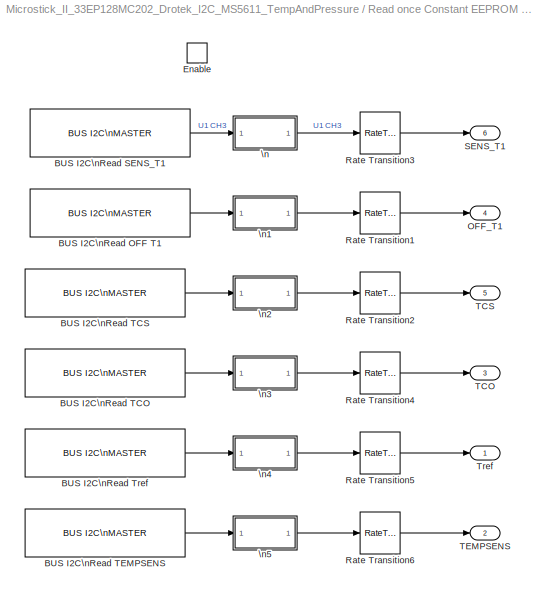
BLOCK [SubSystem] Read once Constant EEPROM Calibration data\nFrom MS5611\n(Blocking I2C blocks)
  FunctionWithSeparateData = off
  MaskHideContents = off
  MinAlgLoopOccurrences = off
  Opaque = off
  Ports = [0, 6, 1]
  PropExecContextOutsideSubsystem = off
  RTWSystemCode = Auto
  RequestExecContextInheritance = off
  SID = 288
BLOCK [Reference] Read once Constant EEPROM Calibration data\nFrom MS5611\n(Blocking I2C blocks)/BUS I2C\nRead OFF T1  REF=MCHP_Blockset/BUS I2C/BUS I2C\nMASTER
  BlockingMode = on
  I2CRef = 1
  I2C_IntPriority = 5
  I2Csequence_num = [BFF0000000000000 40E0600000000000 412E848000000000 412E9EA0F694FA01]$[4070000000000000]$[3FF0000000000000 40E0200000000000 40F86A0000000000 40F866E066594CA2]$[4040000000000000 0000000000000000 0000000000000000 405DC00000000000]$[4050000000000000 3FF0000000000000 0000000000000000 4064800000000000]$[4008000000000000 40E0200000000000 40F86A0000000000 40F866E066594CA2]$[4060000000000000 4000000000000...<+74ch>
  I2Csequence_txt = Initial-Configuration$     ---     $Start$Write Address:{[0x77]}    % Componnent address$Write Data (x1)  Write:{[0xA4]}      % PROM Read$Re-Start$Read Data (x2)  Read:{OFF_T1}    % Read OFF_T1$Stop
  InitialConfigurationNum = 0
  MCHP_MASTERLINK = Microstick_II_33EP128MC202_Drotek_I2C_MS5611_TempAndPressure/Microchip Master
  MCHP_PORT = {I2C 1 Clock}{SCL1}13:0:B8;{I2C 1 SDA}{SDA1}13:0:B9;
  ORDERING = 0
  PIN_SCL_TXT = B8 / Pin[17]
  PIN_SDA_TXT = B9 / Pin[18]
  Ports = [0, 1]
  SID = 283
  S_INPUT = [5  5]
  S_INPUT_Size = [2  2]
  S_OUTPUT = [5]
  S_OUTPUT_Size = [4]
  SampleTime = -1
  SourceBlock = MCHP_Blockset/BUS I2C/BUS I2C\nMASTER
  SourceType = I2C Driver
BLOCK [Reference] Read once Constant EEPROM Calibration data\nFrom MS5611\n(Blocking I2C blocks)/BUS I2C\nRead SENS_T1  REF=MCHP_Blockset/BUS I2C/BUS I2C\nMASTER
  BlockingMode = on
  I2CRef = 1
  I2C_IntPriority = 5
  I2Csequence_num = [BFF0000000000000 40E0600000000000 412E848000000000 412E9EA0F694FA01]$[4070000000000000]$[3FF0000000000000 40E0200000000000 40F86A0000000000 40F866E066594CA2]$[4040000000000000 0000000000000000 0000000000000000 405DC00000000000]$[4050000000000000 3FF0000000000000 0000000000000000 4064400000000000]$[4008000000000000 40E0200000000000 40F86A0000000000 40F866E066594CA2]$[4060000000000000 4000000000000...<+74ch>
  I2Csequence_txt = Initial-Configuration$     ---     $Start$Write Address:{[0x77]}    % Componnent address$Write Data (x1)  Write:{[0xA2]}      % PROM Read$Re-Start$Read Data (x2)  Read:{SENS_T1}    % Read SENS_T1$Stop
  InitialConfigurationNum = 0
  MCHP_MASTERLINK = Microstick_II_33EP128MC202_Drotek_I2C_MS5611_TempAndPressure/Microchip Master
  MCHP_PORT = {I2C 1 Clock}{SCL1}13:0:B8;{I2C 1 SDA}{SDA1}13:0:B9;
  ORDERING = 0
  PIN_SCL_TXT = B8 / Pin[17]
  PIN_SDA_TXT = B9 / Pin[18]
  Ports = [0, 1]
  SID = 254
  S_INPUT = [5  5]
  S_INPUT_Size = [2  2]
  S_OUTPUT = [5]
  S_OUTPUT_Size = [4]
  SampleTime = -1
  SourceBlock = MCHP_Blockset/BUS I2C/BUS I2C\nMASTER
  SourceType = I2C Driver
BLOCK [Reference] Read once Constant EEPROM Calibration data\nFrom MS5611\n(Blocking I2C blocks)/BUS I2C\nRead TCO  REF=MCHP_Blockset/BUS I2C/BUS I2C\nMASTER
  BlockingMode = on
  I2CRef = 1
  I2C_IntPriority = 5
  I2Csequence_num = [BFF0000000000000 40E0600000000000 412E848000000000 412E9EA0F694FA01]$[4070000000000000]$[3FF0000000000000 40E0200000000000 40F86A0000000000 40F866E066594CA2]$[4040000000000000 0000000000000000 0000000000000000 405DC00000000000]$[4050000000000000 3FF0000000000000 0000000000000000 4065000000000000]$[4008000000000000 40E0200000000000 40F86A0000000000 40F866E066594CA2]$[4060000000000000 4000000000000...<+74ch>
  I2Csequence_txt = Initial-Configuration$     ---     $Start$Write Address:{[0x77]}    % Componnent address$Write Data (x1)  Write:{[0xA8]}      % PROM Read$Re-Start$Read Data (x2)  Read:{TCO}    % Read TCO$Stop
  InitialConfigurationNum = 0
  MCHP_MASTERLINK = Microstick_II_33EP128MC202_Drotek_I2C_MS5611_TempAndPressure/Microchip Master
  MCHP_PORT = {I2C 1 Clock}{SCL1}13:0:B8;{I2C 1 SDA}{SDA1}13:0:B9;
  ORDERING = 0
  PIN_SCL_TXT = B8 / Pin[17]
  PIN_SDA_TXT = B9 / Pin[18]
  Ports = [0, 1]
  SID = 285
  S_INPUT = [5  5]
  S_INPUT_Size = [2  2]
  S_OUTPUT = [5]
  S_OUTPUT_Size = [4]
  SampleTime = -1
  SourceBlock = MCHP_Blockset/BUS I2C/BUS I2C\nMASTER
  SourceType = I2C Driver
BLOCK [Reference] Read once Constant EEPROM Calibration data\nFrom MS5611\n(Blocking I2C blocks)/BUS I2C\nRead TCS  REF=MCHP_Blockset/BUS I2C/BUS I2C\nMASTER
  BlockingMode = on
  I2CRef = 1
  I2C_IntPriority = 5
  I2Csequence_num = [BFF0000000000000 40E0600000000000 412E848000000000 412E9EA0F694FA01]$[4070000000000000]$[3FF0000000000000 40E0200000000000 40F86A0000000000 40F866E066594CA2]$[4040000000000000 0000000000000000 0000000000000000 405DC00000000000]$[4050000000000000 3FF0000000000000 0000000000000000 4064C00000000000]$[4008000000000000 40E0200000000000 40F86A0000000000 40F866E066594CA2]$[4060000000000000 4000000000000...<+74ch>
  I2Csequence_txt = Initial-Configuration$     ---     $Start$Write Address:{[0x77]}    % Componnent address$Write Data (x1)  Write:{[0xA6]}      % PROM Read$Re-Start$Read Data (x2)  Read:{TCS}    % Read TCS$Stop
  InitialConfigurationNum = 0
  MCHP_MASTERLINK = Microstick_II_33EP128MC202_Drotek_I2C_MS5611_TempAndPressure/Microchip Master
  MCHP_PORT = {I2C 1 Clock}{SCL1}13:0:B8;{I2C 1 SDA}{SDA1}13:0:B9;
  ORDERING = 0
  PIN_SCL_TXT = B8 / Pin[17]
  PIN_SDA_TXT = B9 / Pin[18]
  Ports = [0, 1]
  SID = 284
  S_INPUT = [5  5]
  S_INPUT_Size = [2  2]
  S_OUTPUT = [5]
  S_OUTPUT_Size = [4]
  SampleTime = -1
  SourceBlock = MCHP_Blockset/BUS I2C/BUS I2C\nMASTER
  SourceType = I2C Driver
BLOCK [Reference] Read once Constant EEPROM Calibration data\nFrom MS5611\n(Blocking I2C blocks)/BUS I2C\nRead TEMPSENS  REF=MCHP_Blockset/BUS I2C/BUS I2C\nMASTER
  BlockingMode = on
  I2CRef = 1
  I2C_IntPriority = 5
  I2Csequence_num = [BFF0000000000000 40E0600000000000 412E848000000000 412E9EA0F694FA01]$[4070000000000000]$[3FF0000000000000 40E0200000000000 40F86A0000000000 40F866E066594CA2]$[4040000000000000 0000000000000000 0000000000000000 405DC00000000000]$[4050000000000000 3FF0000000000000 0000000000000000 4065800000000000]$[4008000000000000 40E0200000000000 40F86A0000000000 40F866E066594CA2]$[4060000000000000 4000000000000...<+74ch>
  I2Csequence_txt = Initial-Configuration$     ---     $Start$Write Address:{[0x77]}    % Componnent address$Write Data (x1)  Write:{[0xAC]}      % PROM Read$Re-Start$Read Data (x2)  Read:{TEMPSENS}    % Read TEMPSENS$Stop
  InitialConfigurationNum = 0
  MCHP_MASTERLINK = Microstick_II_33EP128MC202_Drotek_I2C_MS5611_TempAndPressure/Microchip Master
  MCHP_PORT = {I2C 1 Clock}{SCL1}13:0:B8;{I2C 1 SDA}{SDA1}13:0:B9;
  ORDERING = 0
  PIN_SCL_TXT = B8 / Pin[17]
  PIN_SDA_TXT = B9 / Pin[18]
  Ports = [0, 1]
  SID = 287
  S_INPUT = [5  5]
  S_INPUT_Size = [2  2]
  S_OUTPUT = [5]
  S_OUTPUT_Size = [4]
  SampleTime = -1
  SourceBlock = MCHP_Blockset/BUS I2C/BUS I2C\nMASTER
  SourceType = I2C Driver
BLOCK [Reference] Read once Constant EEPROM Calibration data\nFrom MS5611\n(Blocking I2C blocks)/BUS I2C\nRead Tref  REF=MCHP_Blockset/BUS I2C/BUS I2C\nMASTER
  BlockingMode = on
  I2CRef = 1
  I2C_IntPriority = 5
  I2Csequence_num = [BFF0000000000000 40E0600000000000 412E848000000000 412E9EA0F694FA01]$[4070000000000000]$[3FF0000000000000 40E0200000000000 40F86A0000000000 40F866E066594CA2]$[4040000000000000 0000000000000000 0000000000000000 405DC00000000000]$[4050000000000000 3FF0000000000000 0000000000000000 4065400000000000]$[4008000000000000 40E0200000000000 40F86A0000000000 40F866E066594CA2]$[4060000000000000 4000000000000...<+74ch>
  I2Csequence_txt = Initial-Configuration$     ---     $Start$Write Address:{[0x77]}    % Componnent address$Write Data (x1)  Write:{[0xAA]}      % PROM Read$Re-Start$Read Data (x2)  Read:{Tref}    % Read Tref$Stop
  InitialConfigurationNum = 0
  MCHP_MASTERLINK = Microstick_II_33EP128MC202_Drotek_I2C_MS5611_TempAndPressure/Microchip Master
  MCHP_PORT = {I2C 1 Clock}{SCL1}13:0:B8;{I2C 1 SDA}{SDA1}13:0:B9;
  ORDERING = 0
  PIN_SCL_TXT = B8 / Pin[17]
  PIN_SDA_TXT = B9 / Pin[18]
  Ports = [0, 1]
  SID = 286
  S_INPUT = [5  5]
  S_INPUT_Size = [2  2]
  S_OUTPUT = [5]
  S_OUTPUT_Size = [4]
  SampleTime = -1
  SourceBlock = MCHP_Blockset/BUS I2C/BUS I2C\nMASTER
  SourceType = I2C Driver
BLOCK [EnablePort] Read once Constant EEPROM Calibration data\nFrom MS5611\n(Blocking I2C blocks)/Enable
  Ports = []
  SID = 359
BLOCK [Outport] Read once Constant EEPROM Calibration data\nFrom MS5611\n(Blocking I2C blocks)/OFF_T1
  IconDisplay = Port number
  Port = 4
  SID = 290
BLOCK [RateTransition] Read once Constant EEPROM Calibration data\nFrom MS5611\n(Blocking I2C blocks)/Rate Transition1
  Deterministic = off
  Integrity = off
  SID = 335
BLOCK [RateTransition] Read once Constant EEPROM Calibration data\nFrom MS5611\n(Blocking I2C blocks)/Rate Transition2
  Deterministic = off
  Integrity = off
  SID = 336
BLOCK [RateTransition] Read once Constant EEPROM Calibration data\nFrom MS5611\n(Blocking I2C blocks)/Rate Transition3
  Deterministic = off
  Integrity = off
  SID = 282
BLOCK [RateTransition] Read once Constant EEPROM Calibration data\nFrom MS5611\n(Blocking I2C blocks)/Rate Transition4
  Deterministic = off
  Integrity = off
  SID = 337
BLOCK [RateTransition] Read once Constant EEPROM Calibration data\nFrom MS5611\n(Blocking I2C blocks)/Rate Transition5
  Deterministic = off
  Integrity = off
  SID = 338
BLOCK [RateTransition] Read once Constant EEPROM Calibration data\nFrom MS5611\n(Blocking I2C blocks)/Rate Transition6
  Deterministic = off
  Integrity = off
  SID = 339
BLOCK [Outport] Read once Constant EEPROM Calibration data\nFrom MS5611\n(Blocking I2C blocks)/SENS_T1
  IconDisplay = Port number
  Port = 6
  SID = 289
BLOCK [Outport] Read once Constant EEPROM Calibration data\nFrom MS5611\n(Blocking I2C blocks)/TCO
  IconDisplay = Port number
  Port = 3
  SID = 292
BLOCK [Outport] Read once Constant EEPROM Calibration data\nFrom MS5611\n(Blocking I2C blocks)/TCS
  IconDisplay = Port number
  Port = 5
  SID = 291
BLOCK [Outport] Read once Constant EEPROM Calibration data\nFrom MS5611\n(Blocking I2C blocks)/TEMPSENS
  IconDisplay = Port number
  Port = 2
  SID = 294
BLOCK [Outport] Read once Constant EEPROM Calibration data\nFrom MS5611\n(Blocking I2C blocks)/Tref
  IconDisplay = Port number
  SID = 293
BLOCK [SubSystem] Read once Constant EEPROM Calibration data\nFrom MS5611\n(Blocking I2C blocks)/\n
  FunctionWithSeparateData = off
  MaskHideContents = off
  MinAlgLoopOccurrences = off
  Opaque = off
  Ports = [1, 1]
  PropExecContextOutsideSubsystem = off
  RTWSystemCode = Auto
  RequestExecContextInheritance = off
  SID = 274
BLOCK [Reference] Read once Constant EEPROM Calibration data\nFrom MS5611\n(Blocking I2C blocks)/\n/Bitwise\nOperator  REF=simulink/Logic and Bit\nOperations/Bitwise\nOperator
  BitMask = bin2dec('11011001')
  BitMaskRealWorld = Stored Integer
  NumInputPorts = 2
  Ports = [2, 1]
  SID = 276
  SourceBlock = simulink/Logic and Bit\nOperations/Bitwise\nOperator
  SourceType = Bitwise Operator
  UseBitMask = off
  logicop = OR
BLOCK [DataTypeConversion] Read once Constant EEPROM Calibration data\nFrom MS5611\n(Blocking I2C blocks)/\n/Data Type Conversion1
  OutDataTypeMode = uint16
  OutDataTypeStr = uint16
  RndMeth = Floor
  SID = 277
  SaturateOnIntegerOverflow = off
BLOCK [DataTypeConversion] Read once Constant EEPROM Calibration data\nFrom MS5611\n(Blocking I2C blocks)/\n/Data Type Conversion2
  OutDataTypeMode = uint16
  OutDataTypeStr = uint16
  RndMeth = Floor
  SID = 278
  SaturateOnIntegerOverflow = off
BLOCK [Demux] Read once Constant EEPROM Calibration data\nFrom MS5611\n(Blocking I2C blocks)/\n/Demux2
  DisplayOption = bar
  Outputs = 2
  Ports = [1, 2]
  SID = 279
BLOCK [Inport] Read once Constant EEPROM Calibration data\nFrom MS5611\n(Blocking I2C blocks)/\n/In1
  IconDisplay = Port number
  SID = 275
BLOCK [Outport] Read once Constant EEPROM Calibration data\nFrom MS5611\n(Blocking I2C blocks)/\n/Out1
  IconDisplay = Port number
  SID = 281
BLOCK [Reference] Read once Constant EEPROM Calibration data\nFrom MS5611\n(Blocking I2C blocks)/\n/Shift\nArithmetic  REF=simulink/Logic and Bit\nOperations/Shift\nArithmetic
  FunctionWithSeparateData = off
  Ports = [1, 1]
  RTWMemSecDataConstants = Inherit from model
  RTWMemSecDataInternal = Inherit from model
  RTWMemSecDataParameters = Inherit from model
  RTWMemSecFuncExecute = Inherit from model
  RTWMemSecFuncInitTerm = Inherit from model
  SID = 420
  ShowPortLabels = FromPortIcon
  SourceBlock = simulink/Logic and Bit\nOperations/Shift\nArithmetic
  SourceType = Shift Arithmetic
  SystemSampleTime = -1
  nBinPtShiftRight = 0
  nBitShiftRight = -8
BLOCK [SubSystem] Read once Constant EEPROM Calibration data\nFrom MS5611\n(Blocking I2C blocks)/\n1
  FunctionWithSeparateData = off
  MaskHideContents = off
  MinAlgLoopOccurrences = off
  Opaque = off
  Ports = [1, 1]
  PropExecContextOutsideSubsystem = off
  RTWSystemCode = Auto
  RequestExecContextInheritance = off
  SID = 295
BLOCK [Reference] Read once Constant EEPROM Calibration data\nFrom MS5611\n(Blocking I2C blocks)/\n1/Bitwise\nOperator  REF=simulink/Logic and Bit\nOperations/Bitwise\nOperator
  BitMask = bin2dec('11011001')
  BitMaskRealWorld = Stored Integer
  NumInputPorts = 2
  Ports = [2, 1]
  SID = 297
  SourceBlock = simulink/Logic and Bit\nOperations/Bitwise\nOperator
  SourceType = Bitwise Operator
  UseBitMask = off
  logicop = OR
BLOCK [DataTypeConversion] Read once Constant EEPROM Calibration data\nFrom MS5611\n(Blocking I2C blocks)/\n1/Data Type Conversion1
  OutDataTypeMode = uint16
  OutDataTypeStr = uint16
  RndMeth = Floor
  SID = 298
  SaturateOnIntegerOverflow = off
BLOCK [DataTypeConversion] Read once Constant EEPROM Calibration data\nFrom MS5611\n(Blocking I2C blocks)/\n1/Data Type Conversion2
  OutDataTypeMode = uint16
  OutDataTypeStr = uint16
  RndMeth = Floor
  SID = 299
  SaturateOnIntegerOverflow = off
BLOCK [Demux] Read once Constant EEPROM Calibration data\nFrom MS5611\n(Blocking I2C blocks)/\n1/Demux2
  DisplayOption = bar
  Outputs = 2
  Ports = [1, 2]
  SID = 300
BLOCK [Inport] Read once Constant EEPROM Calibration data\nFrom MS5611\n(Blocking I2C blocks)/\n1/In1
  IconDisplay = Port number
  SID = 296
BLOCK [Outport] Read once Constant EEPROM Calibration data\nFrom MS5611\n(Blocking I2C blocks)/\n1/Out1
  IconDisplay = Port number
  SID = 302
BLOCK [Reference] Read once Constant EEPROM Calibration data\nFrom MS5611\n(Blocking I2C blocks)/\n1/Shift\nArithmetic  REF=simulink/Logic and Bit\nOperations/Shift\nArithmetic
  FunctionWithSeparateData = off
  Ports = [1, 1]
  RTWMemSecDataConstants = Inherit from model
  RTWMemSecDataInternal = Inherit from model
  RTWMemSecDataParameters = Inherit from model
  RTWMemSecFuncExecute = Inherit from model
  RTWMemSecFuncInitTerm = Inherit from model
  SID = 421
  ShowPortLabels = FromPortIcon
  SourceBlock = simulink/Logic and Bit\nOperations/Shift\nArithmetic
  SourceType = Shift Arithmetic
  SystemSampleTime = -1
  nBinPtShiftRight = 0
  nBitShiftRight = -8
BLOCK [SubSystem] Read once Constant EEPROM Calibration data\nFrom MS5611\n(Blocking I2C blocks)/\n2
  FunctionWithSeparateData = off
  MaskHideContents = off
  MinAlgLoopOccurrences = off
  Opaque = off
  Ports = [1, 1]
  PropExecContextOutsideSubsystem = off
  RTWSystemCode = Auto
  RequestExecContextInheritance = off
  SID = 303
BLOCK [Reference] Read once Constant EEPROM Calibration data\nFrom MS5611\n(Blocking I2C blocks)/\n2/Bitwise\nOperator  REF=simulink/Logic and Bit\nOperations/Bitwise\nOperator
  BitMask = bin2dec('11011001')
  BitMaskRealWorld = Stored Integer
  NumInputPorts = 2
  Ports = [2, 1]
  SID = 305
  SourceBlock = simulink/Logic and Bit\nOperations/Bitwise\nOperator
  SourceType = Bitwise Operator
  UseBitMask = off
  logicop = OR
BLOCK [DataTypeConversion] Read once Constant EEPROM Calibration data\nFrom MS5611\n(Blocking I2C blocks)/\n2/Data Type Conversion1
  OutDataTypeMode = uint16
  OutDataTypeStr = uint16
  RndMeth = Floor
  SID = 306
  SaturateOnIntegerOverflow = off
BLOCK [DataTypeConversion] Read once Constant EEPROM Calibration data\nFrom MS5611\n(Blocking I2C blocks)/\n2/Data Type Conversion2
  OutDataTypeMode = uint16
  OutDataTypeStr = uint16
  RndMeth = Floor
  SID = 307
  SaturateOnIntegerOverflow = off
BLOCK [Demux] Read once Constant EEPROM Calibration data\nFrom MS5611\n(Blocking I2C blocks)/\n2/Demux2
  DisplayOption = bar
  Outputs = 2
  Ports = [1, 2]
  SID = 308
BLOCK [Inport] Read once Constant EEPROM Calibration data\nFrom MS5611\n(Blocking I2C blocks)/\n2/In1
  IconDisplay = Port number
  SID = 304
BLOCK [Outport] Read once Constant EEPROM Calibration data\nFrom MS5611\n(Blocking I2C blocks)/\n2/Out1
  IconDisplay = Port number
  SID = 310
BLOCK [Reference] Read once Constant EEPROM Calibration data\nFrom MS5611\n(Blocking I2C blocks)/\n2/Shift\nArithmetic  REF=simulink/Logic and Bit\nOperations/Shift\nArithmetic
  FunctionWithSeparateData = off
  Ports = [1, 1]
  RTWMemSecDataConstants = Inherit from model
  RTWMemSecDataInternal = Inherit from model
  RTWMemSecDataParameters = Inherit from model
  RTWMemSecFuncExecute = Inherit from model
  RTWMemSecFuncInitTerm = Inherit from model
  SID = 422
  ShowPortLabels = FromPortIcon
  SourceBlock = simulink/Logic and Bit\nOperations/Shift\nArithmetic
  SourceType = Shift Arithmetic
  SystemSampleTime = -1
  nBinPtShiftRight = 0
  nBitShiftRight = -8
BLOCK [SubSystem] Read once Constant EEPROM Calibration data\nFrom MS5611\n(Blocking I2C blocks)/\n3
  FunctionWithSeparateData = off
  MaskHideContents = off
  MinAlgLoopOccurrences = off
  Opaque = off
  Ports = [1, 1]
  PropExecContextOutsideSubsystem = off
  RTWSystemCode = Auto
  RequestExecContextInheritance = off
  SID = 311
BLOCK [Reference] Read once Constant EEPROM Calibration data\nFrom MS5611\n(Blocking I2C blocks)/\n3/Bitwise\nOperator  REF=simulink/Logic and Bit\nOperations/Bitwise\nOperator
  BitMask = bin2dec('11011001')
  BitMaskRealWorld = Stored Integer
  NumInputPorts = 2
  Ports = [2, 1]
  SID = 313
  SourceBlock = simulink/Logic and Bit\nOperations/Bitwise\nOperator
  SourceType = Bitwise Operator
  UseBitMask = off
  logicop = OR
BLOCK [DataTypeConversion] Read once Constant EEPROM Calibration data\nFrom MS5611\n(Blocking I2C blocks)/\n3/Data Type Conversion1
  OutDataTypeMode = uint16
  OutDataTypeStr = uint16
  RndMeth = Floor
  SID = 314
  SaturateOnIntegerOverflow = off
BLOCK [DataTypeConversion] Read once Constant EEPROM Calibration data\nFrom MS5611\n(Blocking I2C blocks)/\n3/Data Type Conversion2
  OutDataTypeMode = uint16
  OutDataTypeStr = uint16
  RndMeth = Floor
  SID = 315
  SaturateOnIntegerOverflow = off
BLOCK [Demux] Read once Constant EEPROM Calibration data\nFrom MS5611\n(Blocking I2C blocks)/\n3/Demux2
  DisplayOption = bar
  Outputs = 2
  Ports = [1, 2]
  SID = 316
BLOCK [Inport] Read once Constant EEPROM Calibration data\nFrom MS5611\n(Blocking I2C blocks)/\n3/In1
  IconDisplay = Port number
  SID = 312
BLOCK [Outport] Read once Constant EEPROM Calibration data\nFrom MS5611\n(Blocking I2C blocks)/\n3/Out1
  IconDisplay = Port number
  SID = 318
BLOCK [Reference] Read once Constant EEPROM Calibration data\nFrom MS5611\n(Blocking I2C blocks)/\n3/Shift\nArithmetic  REF=simulink/Logic and Bit\nOperations/Shift\nArithmetic
  FunctionWithSeparateData = off
  Ports = [1, 1]
  RTWMemSecDataConstants = Inherit from model
  RTWMemSecDataInternal = Inherit from model
  RTWMemSecDataParameters = Inherit from model
  RTWMemSecFuncExecute = Inherit from model
  RTWMemSecFuncInitTerm = Inherit from model
  SID = 423
  ShowPortLabels = FromPortIcon
  SourceBlock = simulink/Logic and Bit\nOperations/Shift\nArithmetic
  SourceType = Shift Arithmetic
  SystemSampleTime = -1
  nBinPtShiftRight = 0
  nBitShiftRight = -8
BLOCK [SubSystem] Read once Constant EEPROM Calibration data\nFrom MS5611\n(Blocking I2C blocks)/\n4
  FunctionWithSeparateData = off
  MaskHideContents = off
  MinAlgLoopOccurrences = off
  Opaque = off
  Ports = [1, 1]
  PropExecContextOutsideSubsystem = off
  RTWSystemCode = Auto
  RequestExecContextInheritance = off
  SID = 319
BLOCK [Reference] Read once Constant EEPROM Calibration data\nFrom MS5611\n(Blocking I2C blocks)/\n4/Bitwise\nOperator  REF=simulink/Logic and Bit\nOperations/Bitwise\nOperator
  BitMask = bin2dec('11011001')
  BitMaskRealWorld = Stored Integer
  NumInputPorts = 2
  Ports = [2, 1]
  SID = 321
  SourceBlock = simulink/Logic and Bit\nOperations/Bitwise\nOperator
  SourceType = Bitwise Operator
  UseBitMask = off
  logicop = OR
BLOCK [DataTypeConversion] Read once Constant EEPROM Calibration data\nFrom MS5611\n(Blocking I2C blocks)/\n4/Data Type Conversion1
  OutDataTypeMode = uint16
  OutDataTypeStr = uint16
  RndMeth = Floor
  SID = 322
  SaturateOnIntegerOverflow = off
BLOCK [DataTypeConversion] Read once Constant EEPROM Calibration data\nFrom MS5611\n(Blocking I2C blocks)/\n4/Data Type Conversion2
  OutDataTypeMode = uint16
  OutDataTypeStr = uint16
  RndMeth = Floor
  SID = 323
  SaturateOnIntegerOverflow = off
BLOCK [Demux] Read once Constant EEPROM Calibration data\nFrom MS5611\n(Blocking I2C blocks)/\n4/Demux2
  DisplayOption = bar
  Outputs = 2
  Ports = [1, 2]
  SID = 324
BLOCK [Inport] Read once Constant EEPROM Calibration data\nFrom MS5611\n(Blocking I2C blocks)/\n4/In1
  IconDisplay = Port number
  SID = 320
BLOCK [Outport] Read once Constant EEPROM Calibration data\nFrom MS5611\n(Blocking I2C blocks)/\n4/Out1
  IconDisplay = Port number
  SID = 326
BLOCK [Reference] Read once Constant EEPROM Calibration data\nFrom MS5611\n(Blocking I2C blocks)/\n4/Shift\nArithmetic  REF=simulink/Logic and Bit\nOperations/Shift\nArithmetic
  FunctionWithSeparateData = off
  Ports = [1, 1]
  RTWMemSecDataConstants = Inherit from model
  RTWMemSecDataInternal = Inherit from model
  RTWMemSecDataParameters = Inherit from model
  RTWMemSecFuncExecute = Inherit from model
  RTWMemSecFuncInitTerm = Inherit from model
  SID = 424
  ShowPortLabels = FromPortIcon
  SourceBlock = simulink/Logic and Bit\nOperations/Shift\nArithmetic
  SourceType = Shift Arithmetic
  SystemSampleTime = -1
  nBinPtShiftRight = 0
  nBitShiftRight = -8
BLOCK [SubSystem] Read once Constant EEPROM Calibration data\nFrom MS5611\n(Blocking I2C blocks)/\n5
  FunctionWithSeparateData = off
  MaskHideContents = off
  MinAlgLoopOccurrences = off
  Opaque = off
  Ports = [1, 1]
  PropExecContextOutsideSubsystem = off
  RTWSystemCode = Auto
  RequestExecContextInheritance = off
  SID = 327
BLOCK [Reference] Read once Constant EEPROM Calibration data\nFrom MS5611\n(Blocking I2C blocks)/\n5/Bitwise\nOperator  REF=simulink/Logic and Bit\nOperations/Bitwise\nOperator
  BitMask = bin2dec('11011001')
  BitMaskRealWorld = Stored Integer
  NumInputPorts = 2
  Ports = [2, 1]
  SID = 329
  SourceBlock = simulink/Logic and Bit\nOperations/Bitwise\nOperator
  SourceType = Bitwise Operator
  UseBitMask = off
  logicop = OR
BLOCK [DataTypeConversion] Read once Constant EEPROM Calibration data\nFrom MS5611\n(Blocking I2C blocks)/\n5/Data Type Conversion1
  OutDataTypeMode = uint16
  OutDataTypeStr = uint16
  RndMeth = Floor
  SID = 330
  SaturateOnIntegerOverflow = off
BLOCK [DataTypeConversion] Read once Constant EEPROM Calibration data\nFrom MS5611\n(Blocking I2C blocks)/\n5/Data Type Conversion2
  OutDataTypeMode = uint16
  OutDataTypeStr = uint16
  RndMeth = Floor
  SID = 331
  SaturateOnIntegerOverflow = off
BLOCK [Demux] Read once Constant EEPROM Calibration data\nFrom MS5611\n(Blocking I2C blocks)/\n5/Demux2
  DisplayOption = bar
  Outputs = 2
  Ports = [1, 2]
  SID = 332
BLOCK [Inport] Read once Constant EEPROM Calibration data\nFrom MS5611\n(Blocking I2C blocks)/\n5/In1
  IconDisplay = Port number
  SID = 328
BLOCK [Outport] Read once Constant EEPROM Calibration data\nFrom MS5611\n(Blocking I2C blocks)/\n5/Out1
  IconDisplay = Port number
  SID = 334
BLOCK [Reference] Read once Constant EEPROM Calibration data\nFrom MS5611\n(Blocking I2C blocks)/\n5/Shift\nArithmetic  REF=simulink/Logic and Bit\nOperations/Shift\nArithmetic
  FunctionWithSeparateData = off
  Ports = [1, 1]
  RTWMemSecDataConstants = Inherit from model
  RTWMemSecDataInternal = Inherit from model
  RTWMemSecDataParameters = Inherit from model
  RTWMemSecFuncExecute = Inherit from model
  RTWMemSecFuncInitTerm = Inherit from model
  SID = 425
  ShowPortLabels = FromPortIcon
  SourceBlock = simulink/Logic and Bit\nOperations/Shift\nArithmetic
  SourceType = Shift Arithmetic
  SystemSampleTime = -1
  nBinPtShiftRight = 0
  nBitShiftRight = -8
BLOCK [Reference] Script\nPressure to Altitude  REF=simulink/Model-Wide\nUtilities/DocBlock
  DocumentType = Text
  FunctionWithSeparateData = off
  Ports = []
  RTWMemSecDataConstants = Inherit from model
  RTWMemSecDataInternal = Inherit from model
  RTWMemSecDataParameters = Inherit from model
  RTWMemSecFuncExecute = Inherit from model
  RTWMemSecFuncInitTerm = Inherit from model
  SID = 405
  ShowPortLabels = FromPortIcon
  SourceBlock = simulink/Model-Wide\nUtilities/DocBlock
  SourceType = DocBlock
  SystemSampleTime = -1
  UserData = DataTag0
  UserDataPersistent = on
BLOCK [Sum] Sum1
  AccumDataTypeStr = fixdt(1,24,0)
  InputSameDT = off
  Inputs = +-
  OutDataTypeMode = Same as accumulator
  OutDataTypeStr = Inherit: Same as accumulator
  Ports = [2, 1]
  SID = 208
  SaturateOnIntegerOverflow = off
BLOCK [Sum] Sum2
  AccumDataTypeStr = Inherit: Same as first input
  InputSameDT = off
  OutDataType = fixdt(1,32,17)
  OutDataTypeMode = Specify via dialog
  OutDataTypeStr = fixdt(1,32,17)
  OutMax = 8500
  OutMin = -4000
  Ports = [2, 1]
  SID = 209
  SaturateOnIntegerOverflow = off
BLOCK [Sum] Sum3
  InputSameDT = off
  OutDataType = fixdt(1,41,6)
  OutDataTypeMode = Specify via dialog
  OutDataTypeStr = fixdt(1,41,6)
  OutMax = 12884705280
  OutMin = -8589672450
  Ports = [2, 1]
  SID = 210
  SaturateOnIntegerOverflow = off
BLOCK [Sum] Sum4
  InputSameDT = off
  OutDataType = fixdt(1,41,7)
  OutDataTypeMode = Specify via dialog
  OutDataTypeStr = fixdt(1,41,7)
  OutMax = 6442352640
  OutMin = -4294836225
  Ports = [2, 1]
  SID = 211
  SaturateOnIntegerOverflow = off
BLOCK [Reference] UART Configuration  REF=MCHP_Blockset/BUS UART/UART Configuration
  ALT_IO = on
  BAUD_Choice = Dynamic Options
  BAUD_Choice_IR = Dynamic Options
  BAUD_Choice_IR_InitSeq = Dynamic Options
  BAUD_Choice_IR_InitSeq_TXT = 0
  BAUD_Choice_IR_TXT = []
  BAUD_Choice_InitSeq = Dynamic Options
  BAUD_Choice_InitSeq_TXT = 0
  BAUD_Choice_TXT = 115200         [+0.18%]
  BAUD_Custom = 115200
  BAUD_Custom_InitSeq = 0
  FlowControl = None
  IRDA = off
  InitSequence = 'Hello World'
  InitSequence_chkbox = off
  MCHP_COM_ExtPil = off
  MCHP_MASTERLINK = Microstick_II_33EP128MC202_Drotek_I2C_MS5611_TempAndPressure/Microchip Master
  MCHP_PORT = {UART1  Tx}{U1TX}3:1:P42;
  PIN_CTS = Dynamic Options
  PIN_CTS_TXT = A4 / P20 / Pin[12]
  PIN_RTS = Dynamic Options
  PIN_RTS_TXT = A4 / P20 / Pin[12]
  PIN_RX = Dynamic Options
  PIN_RX_TXT = B11 / P43 / Pin[22]
  PIN_TX = Dynamic Options
  PIN_TX_TXT = B10 / P42 / Pin[21]
  Ports = []
  RX_CIRCULAR_SIZE = 32
  RX_IMPLEMENTATION = Do not implement Rx
  RX_INT_PRIORITY = 1
  RX_INT_WHEN = receive 1 character
  SID = 12
  SourceBlock = MCHP_Blockset/BUS UART/UART Configuration
  SourceType = Configuration for UART peripheral
  TX_CIRCULAR_SIZE = 32
  TX_DMA_CHANNEL = 0   (Lowest Priority)
  TX_DMA_SIZE = []
  TX_IMPLEMENTATION = Circular Buffer
  TX_INT_PRIORITY = 5
  TX_INT_WHEN = is empty & last char is sent
  UART_REF = 1
BLOCK [Reference] UART Tx-Matlab  REF=MCHP_Blockset/BUS UART/UART Tx-Matlab
  AllOrNothing = off
  CHANNELS = [1:2]
  MCHP_COMPILED_INFO = CompiledSampleTime= [0.02   0 ];CompiledInportDataTypes=[  4   5 ];CompiledInportDataWidth=[1  1];
  MCHP_MASTERLINK = Microstick_II_33EP128MC202_Drotek_I2C_MS5611_TempAndPressure/Microchip Master
  Ports = [2]
  SID = 217
  SampleTime = -1
  SourceBlock = MCHP_Blockset/BUS UART/UART Tx-Matlab
  SourceType = Higl Level UART protocol
  UART_REF = 1
BLOCK [Constant] cst
  OutDataTypeMode = uint16
  OutDataTypeStr = uint16
  SID = 215
  Value = 2000
BLOCK [Reference] picgui\nGraphical interface  REF=MCHP_Blockset/BUS UART/picgui\nGraphical interface
  Nothing = 0
  Ports = []
  SID = 407
  SourceBlock = MCHP_Blockset/BUS UART/picgui\nGraphical interface
BLOCK [Bias] remove 30hPa (250m)\nto compensate for\nbad weather forecast\n(avoir neg value at sea level)
  Bias = -3000
  SID = 406
  SaturateOnIntegerOverflow = off
BLOCK [SubSystem] to uint24
  FunctionWithSeparateData = off
  MaskHideContents = off
  MinAlgLoopOccurrences = off
  Opaque = off
  Ports = [1, 1]
  PropExecContextOutsideSubsystem = off
  RTWSystemCode = Auto
  RequestExecContextInheritance = off
  SID = 218
BLOCK [Reference] to uint24/Bitwise\nOperator  REF=simulink/Logic and Bit\nOperations/Bitwise\nOperator
  BitMask = bin2dec('11011001')
  BitMaskRealWorld = Stored Integer
  NumInputPorts = 2
  Ports = [2, 1]
  SID = 228
  SourceBlock = simulink/Logic and Bit\nOperations/Bitwise\nOperator
  SourceType = Bitwise Operator
  UseBitMask = off
  logicop = OR
BLOCK [DataTypeConversion] to uint24/Data Type Conversion1
  OutDataTypeMode = uint32
  OutDataTypeStr = uint32
  RndMeth = Floor
  SID = 229
  SaturateOnIntegerOverflow = off
BLOCK [DataTypeConversion] to uint24/Data Type Conversion2
  OutDataTypeMode = uint32
  OutDataTypeStr = uint32
  RndMeth = Floor
  SID = 230
  SaturateOnIntegerOverflow = off
BLOCK [DataTypeConversion] to uint24/Data Type Conversion3
  ConvertRealWorld = Stored Integer (SI)
  OutDataType = fixdt(0,24,0)
  OutDataTypeMode = Specify via dialog
  OutDataTypeStr = fixdt(0,24,0)
  RndMeth = Floor
  SID = 231
  SaturateOnIntegerOverflow = off
BLOCK [Demux] to uint24/Demux2
  DisplayOption = bar
  Outputs = 3
  Ports = [1, 3]
  SID = 232
BLOCK [Inport] to uint24/In1
  IconDisplay = Port number
  SID = 219
BLOCK [Mux] to uint24/Mux
  DisplayOption = bar
  Inputs = 2
  Ports = [2, 1]
  SID = 233
BLOCK [Outport] to uint24/Out1
  IconDisplay = Port number
  SID = 235
BLOCK [Reference] to uint24/Shift\nArithmetic  REF=simulink/Logic and Bit\nOperations/Shift\nArithmetic
  FunctionWithSeparateData = off
  Ports = [1, 1]
  RTWMemSecDataConstants = Inherit from model
  RTWMemSecDataInternal = Inherit from model
  RTWMemSecDataParameters = Inherit from model
  RTWMemSecFuncExecute = Inherit from model
  RTWMemSecFuncInitTerm = Inherit from model
  SID = 427
  ShowPortLabels = FromPortIcon
  SourceBlock = simulink/Logic and Bit\nOperations/Shift\nArithmetic
  SourceType = Shift Arithmetic
  SystemSampleTime = -1
  nBinPtShiftRight = 0
  nBitShiftRight = -16
BLOCK [SubSystem] to uint24/\n
  FunctionWithSeparateData = off
  MaskHideContents = off
  MinAlgLoopOccurrences = off
  Opaque = off
  Ports = [1, 1]
  PropExecContextOutsideSubsystem = off
  RTWSystemCode = Auto
  RequestExecContextInheritance = off
  SID = 220
BLOCK [Reference] to uint24/\n/Bitwise\nOperator  REF=simulink/Logic and Bit\nOperations/Bitwise\nOperator
  BitMask = bin2dec('11011001')
  BitMaskRealWorld = Stored Integer
  NumInputPorts = 2
  Ports = [2, 1]
  SID = 222
  SourceBlock = simulink/Logic and Bit\nOperations/Bitwise\nOperator
  SourceType = Bitwise Operator
  UseBitMask = off
  logicop = OR
BLOCK [DataTypeConversion] to uint24/\n/Data Type Conversion1
  OutDataTypeMode = uint16
  OutDataTypeStr = uint16
  RndMeth = Floor
  SID = 223
  SaturateOnIntegerOverflow = off
BLOCK [DataTypeConversion] to uint24/\n/Data Type Conversion2
  OutDataTypeMode = uint16
  OutDataTypeStr = uint16
  RndMeth = Floor
  SID = 224
  SaturateOnIntegerOverflow = off
BLOCK [Demux] to uint24/\n/Demux2
  DisplayOption = bar
  Outputs = 2
  Ports = [1, 2]
  SID = 225
BLOCK [Inport] to uint24/\n/In1
  IconDisplay = Port number
  SID = 221
BLOCK [Outport] to uint24/\n/Out1
  IconDisplay = Port number
  SID = 227
BLOCK [Reference] to uint24/\n/Shift\nArithmetic  REF=simulink/Logic and Bit\nOperations/Shift\nArithmetic
  FunctionWithSeparateData = off
  Ports = [1, 1]
  RTWMemSecDataConstants = Inherit from model
  RTWMemSecDataInternal = Inherit from model
  RTWMemSecDataParameters = Inherit from model
  RTWMemSecFuncExecute = Inherit from model
  RTWMemSecFuncInitTerm = Inherit from model
  SID = 426
  ShowPortLabels = FromPortIcon
  SourceBlock = simulink/Logic and Bit\nOperations/Shift\nArithmetic
  SourceType = Shift Arithmetic
  SystemSampleTime = -1
  nBinPtShiftRight = 0
  nBitShiftRight = -8
BLOCK [SubSystem] to uint24_
  FunctionWithSeparateData = off
  MaskHideContents = off
  MinAlgLoopOccurrences = off
  Opaque = off
  Ports = [1, 1]
  PropExecContextOutsideSubsystem = off
  RTWSystemCode = Auto
  RequestExecContextInheritance = off
  SID = 236
BLOCK [Reference] to uint24_/Bitwise\nOperator  REF=simulink/Logic and Bit\nOperations/Bitwise\nOperator
  BitMask = bin2dec('11011001')
  BitMaskRealWorld = Stored Integer
  NumInputPorts = 2
  Ports = [2, 1]
  SID = 246
  SourceBlock = simulink/Logic and Bit\nOperations/Bitwise\nOperator
  SourceType = Bitwise Operator
  UseBitMask = off
  logicop = OR
BLOCK [DataTypeConversion] to uint24_/Data Type Conversion1
  OutDataTypeMode = uint32
  OutDataTypeStr = uint32
  RndMeth = Floor
  SID = 247
  SaturateOnIntegerOverflow = off
BLOCK [DataTypeConversion] to uint24_/Data Type Conversion2
  OutDataTypeMode = uint32
  OutDataTypeStr = uint32
  RndMeth = Floor
  SID = 248
  SaturateOnIntegerOverflow = off
BLOCK [DataTypeConversion] to uint24_/Data Type Conversion3
  ConvertRealWorld = Stored Integer (SI)
  OutDataType = fixdt(0,24,0)
  OutDataTypeMode = Specify via dialog
  OutDataTypeStr = fixdt(0,24,0)
  RndMeth = Floor
  SID = 249
  SaturateOnIntegerOverflow = off
BLOCK [Demux] to uint24_/Demux2
  DisplayOption = bar
  Outputs = 3
  Ports = [1, 3]
  SID = 250
BLOCK [Inport] to uint24_/In1
  IconDisplay = Port number
  SID = 237
BLOCK [Mux] to uint24_/Mux
  DisplayOption = bar
  Inputs = 2
  Ports = [2, 1]
  SID = 251
BLOCK [Outport] to uint24_/Out1
  IconDisplay = Port number
  SID = 253
BLOCK [Reference] to uint24_/Shift\nArithmetic  REF=simulink/Logic and Bit\nOperations/Shift\nArithmetic
  FunctionWithSeparateData = off
  Ports = [1, 1]
  RTWMemSecDataConstants = Inherit from model
  RTWMemSecDataInternal = Inherit from model
  RTWMemSecDataParameters = Inherit from model
  RTWMemSecFuncExecute = Inherit from model
  RTWMemSecFuncInitTerm = Inherit from model
  SID = 429
  ShowPortLabels = FromPortIcon
  SourceBlock = simulink/Logic and Bit\nOperations/Shift\nArithmetic
  SourceType = Shift Arithmetic
  SystemSampleTime = -1
  nBinPtShiftRight = 0
  nBitShiftRight = -16
BLOCK [SubSystem] to uint24_/\n
  FunctionWithSeparateData = off
  MaskHideContents = off
  MinAlgLoopOccurrences = off
  Opaque = off
  Ports = [1, 1]
  PropExecContextOutsideSubsystem = off
  RTWSystemCode = Auto
  RequestExecContextInheritance = off
  SID = 238
BLOCK [Reference] to uint24_/\n/Bitwise\nOperator  REF=simulink/Logic and Bit\nOperations/Bitwise\nOperator
  BitMask = bin2dec('11011001')
  BitMaskRealWorld = Stored Integer
  NumInputPorts = 2
  Ports = [2, 1]
  SID = 240
  SourceBlock = simulink/Logic and Bit\nOperations/Bitwise\nOperator
  SourceType = Bitwise Operator
  UseBitMask = off
  logicop = OR
BLOCK [DataTypeConversion] to uint24_/\n/Data Type Conversion1
  OutDataTypeMode = uint16
  OutDataTypeStr = uint16
  RndMeth = Floor
  SID = 241
  SaturateOnIntegerOverflow = off
BLOCK [DataTypeConversion] to uint24_/\n/Data Type Conversion2
  OutDataTypeMode = uint16
  OutDataTypeStr = uint16
  RndMeth = Floor
  SID = 242
  SaturateOnIntegerOverflow = off
BLOCK [Demux] to uint24_/\n/Demux2
  DisplayOption = bar
  Outputs = 2
  Ports = [1, 2]
  SID = 243
BLOCK [Inport] to uint24_/\n/In1
  IconDisplay = Port number
  SID = 239
BLOCK [Outport] to uint24_/\n/Out1
  IconDisplay = Port number
  SID = 245
BLOCK [Reference] to uint24_/\n/Shift\nArithmetic  REF=simulink/Logic and Bit\nOperations/Shift\nArithmetic
  FunctionWithSeparateData = off
  Ports = [1, 1]
  RTWMemSecDataConstants = Inherit from model
  RTWMemSecDataInternal = Inherit from model
  RTWMemSecDataParameters = Inherit from model
  RTWMemSecFuncExecute = Inherit from model
  RTWMemSecFuncInitTerm = Inherit from model
  SID = 428
  ShowPortLabels = FromPortIcon
  SourceBlock = simulink/Logic and Bit\nOperations/Shift\nArithmetic
  SourceType = Shift Arithmetic
  SystemSampleTime = -1
  nBinPtShiftRight = 0
  nBitShiftRight = -8
LINE 1-D LookupTable\nPressure (Pa) to Altitude (m)\nValidate from 35000 to 101325 Pa \nequiv to 8000 - 0 m:1 -> Data Type Conversion12:1
NET 2nd Order\nCompensation/Bus\nCreator:1 -> 2nd Order\nCompensation/Second Order\nTemp Compensation:1, 2nd Order\nCompensation/Switch1:1
LINE 2nd Order\nCompensation/Bus\nSelector:1 -> 2nd Order\nCompensation/Temp, LSB = 0.01deg:1
LINE 2nd Order\nCompensation/Bus\nSelector:2 -> 2nd Order\nCompensation/OFF_2:1
LINE 2nd Order\nCompensation/Bus\nSelector:3 -> 2nd Order\nCompensation/SENS_2:1
LINE 2nd Order\nCompensation/OFF:1 -> 2nd Order\nCompensation/Bus\nCreator:2
LINE 2nd Order\nCompensation/SENS:1 -> 2nd Order\nCompensation/Bus\nCreator:3
LINE 2nd Order\nCompensation/Second Order\nTemp Compensation/Bus\nCreator2:1 -> 2nd Order\nCompensation/Second Order\nTemp Compensation/Out1:1
NET 2nd Order\nCompensation/Second Order\nTemp Compensation/Bus\nSelector1:1 -> 2nd Order\nCompensation/Second Order\nTemp Compensation/Data Type\nPropagation3:1, 2nd Order\nCompensation/Second Order\nTemp Compensation/Data Type\nPropagation3:2, 2nd Order\nCompensation/Second Order\nTemp Compensation/Data Type\nPropagation4:1, 2nd Order\nCompensation/Second Order\nTemp Compensation/Data Type\nPropagation4:2, 2nd Order\nCompensation/Second Order\nTemp Compensation/Sum6:1, 2nd Order\nCompensation/Second Order\nTemp Compensation/Sum7:1
LINE 2nd Order\nCompensation/Second Order\nTemp Compensation/Bus\nSelector1:2 -> 2nd Order\nCompensation/Second Order\nTemp Compensation/Sum8:1
LINE 2nd Order\nCompensation/Second Order\nTemp Compensation/Bus\nSelector1:3 -> 2nd Order\nCompensation/Second Order\nTemp Compensation/Sum9:1
NET 2nd Order\nCompensation/Second Order\nTemp Compensation/Data Type Conversion10:1 -> 2nd Order\nCompensation/Second Order\nTemp Compensation/Data Type\nPropagation3:3, 2nd Order\nCompensation/Second Order\nTemp Compensation/Sum8:2
NET 2nd Order\nCompensation/Second Order\nTemp Compensation/Data Type Conversion11:1 -> 2nd Order\nCompensation/Second Order\nTemp Compensation/Data Type\nPropagation4:3, 2nd Order\nCompensation/Second Order\nTemp Compensation/Sum9:2
NET 2nd Order\nCompensation/Second Order\nTemp Compensation/Data Type Conversion8:1 -> 2nd Order\nCompensation/Second Order\nTemp Compensation/Data Type\nPropagation2:3, 2nd Order\nCompensation/Second Order\nTemp Compensation/Sum7:2
LINE 2nd Order\nCompensation/Second Order\nTemp Compensation/In3:1 -> 2nd Order\nCompensation/Second Order\nTemp Compensation/Bus\nSelector1:1
NET 2nd Order\nCompensation/Second Order\nTemp Compensation/Math\nFunction:1 -> 2nd Order\nCompensation/Second Order\nTemp Compensation/Data Type Conversion8:1, 2nd Order\nCompensation/Second Order\nTemp Compensation/Data Type\nPropagation2:1, 2nd Order\nCompensation/Second Order\nTemp Compensation/Data Type\nPropagation2:2
NET 2nd Order\nCompensation/Second Order\nTemp Compensation/Sum6:1 -> 2nd Order\nCompensation/Second Order\nTemp Compensation/Data Type Conversion10:1, 2nd Order\nCompensation/Second Order\nTemp Compensation/Data Type Conversion11:1
LINE 2nd Order\nCompensation/Second Order\nTemp Compensation/Sum7:1 -> 2nd Order\nCompensation/Second Order\nTemp Compensation/Bus\nCreator2:1
LINE 2nd Order\nCompensation/Second Order\nTemp Compensation/Sum8:1 -> 2nd Order\nCompensation/Second Order\nTemp Compensation/Bus\nCreator2:2
LINE 2nd Order\nCompensation/Second Order\nTemp Compensation/Sum9:1 -> 2nd Order\nCompensation/Second Order\nTemp Compensation/Bus\nCreator2:3
LINE 2nd Order\nCompensation/Second Order\nTemp Compensation/dt:1 -> 2nd Order\nCompensation/Second Order\nTemp Compensation/Math\nFunction:1
LINE 2nd Order\nCompensation/Second Order\nTemp Compensation/ref:1 -> 2nd Order\nCompensation/Second Order\nTemp Compensation/Sum6:2
LINE 2nd Order\nCompensation/Second Order\nTemp Compensation1/Bus\nCreator2:1 -> 2nd Order\nCompensation/Second Order\nTemp Compensation1/Switch1:3
NET 2nd Order\nCompensation/Second Order\nTemp Compensation1/Bus\nSelector1:1 -> 2nd Order\nCompensation/Second Order\nTemp Compensation1/Bus\nCreator2:1, 2nd Order\nCompensation/Second Order\nTemp Compensation1/Sum6:1, 2nd Order\nCompensation/Second Order\nTemp Compensation1/Switch1:2
LINE 2nd Order\nCompensation/Second Order\nTemp Compensation1/Bus\nSelector1:2 -> 2nd Order\nCompensation/Second Order\nTemp Compensation1/Sum8:1
LINE 2nd Order\nCompensation/Second Order\nTemp Compensation1/Bus\nSelector1:3 -> 2nd Order\nCompensation/Second Order\nTemp Compensation1/Sum1:1
NET 2nd Order\nCompensation/Second Order\nTemp Compensation1/Data Type Conversion1:1 -> 2nd Order\nCompensation/Second Order\nTemp Compensation1/Data Type\nPropagation1:3, 2nd Order\nCompensation/Second Order\nTemp Compensation1/Sum1:2
NET 2nd Order\nCompensation/Second Order\nTemp Compensation1/Data Type Conversion8:1 -> 2nd Order\nCompensation/Second Order\nTemp Compensation1/Data Type\nPropagation2:3, 2nd Order\nCompensation/Second Order\nTemp Compensation1/Sum8:2
NET 2nd Order\nCompensation/Second Order\nTemp Compensation1/In3:1 -> 2nd Order\nCompensation/Second Order\nTemp Compensation1/Bus\nSelector1:1, 2nd Order\nCompensation/Second Order\nTemp Compensation1/Switch1:1
NET 2nd Order\nCompensation/Second Order\nTemp Compensation1/Math\nFunction:1 -> 2nd Order\nCompensation/Second Order\nTemp Compensation1/Data Type Conversion1:1, 2nd Order\nCompensation/Second Order\nTemp Compensation1/Data Type Conversion8:1, 2nd Order\nCompensation/Second Order\nTemp Compensation1/Data Type\nPropagation1:1, 2nd Order\nCompensation/Second Order\nTemp Compensation1/Data Type\nPropagation1:2, 2nd Order\nCompensation/Second Order\nTemp Compensation1/Data Type\nPropagation2:1, 2nd Order\nCompensation/Second Order\nTemp Compensation1/Data Type\nPropagation2:2
LINE 2nd Order\nCompensation/Second Order\nTemp Compensation1/Sum1:1 -> 2nd Order\nCompensation/Second Order\nTemp Compensation1/Bus\nCreator2:3
LINE 2nd Order\nCompensation/Second Order\nTemp Compensation1/Sum6:1 -> 2nd Order\nCompensation/Second Order\nTemp Compensation1/Math\nFunction:1
LINE 2nd Order\nCompensation/Second Order\nTemp Compensation1/Sum8:1 -> 2nd Order\nCompensation/Second Order\nTemp Compensation1/Bus\nCreator2:2
LINE 2nd Order\nCompensation/Second Order\nTemp Compensation1/Switch1:1 -> 2nd Order\nCompensation/Second Order\nTemp Compensation1/Out1:1
LINE 2nd Order\nCompensation/Second Order\nTemp Compensation1/ref:1 -> 2nd Order\nCompensation/Second Order\nTemp Compensation1/Sum6:2
LINE 2nd Order\nCompensation/Second Order\nTemp Compensation1:1 -> 2nd Order\nCompensation/Switch1:3
LINE 2nd Order\nCompensation/Second Order\nTemp Compensation:1 -> 2nd Order\nCompensation/Second Order\nTemp Compensation1:1
LINE 2nd Order\nCompensation/Switch1:1 -> 2nd Order\nCompensation/Bus\nSelector:1
LINE 2nd Order\nCompensation/TEMP3:1 -> 2nd Order\nCompensation/Switch1:2
LINE 2nd Order\nCompensation/TEMP:1 -> 2nd Order\nCompensation/Bus\nCreator:1
LINE 2nd Order\nCompensation/Temp, LSB = 0.01deg:1 -> 2nd Order\nCompensation/TEMP\n1//100 deg:1
LINE 2nd Order\nCompensation/dT:1 -> 2nd Order\nCompensation/Second Order\nTemp Compensation:2
LINE 2nd Order\nCompensation:1 -> Data Type Conversion3:1
LINE 2nd Order\nCompensation:2 -> Compensation:1
LINE 2nd Order\nCompensation:3 -> Compensation:2
LINE BUS I2C\nMASTER2:1 -> to uint24:1
LINE BUS I2C\nMASTER3:1 -> to uint24_:1
LINE Compensation/D1:1 -> Compensation/Product2:1
NET Compensation/Data Type Conversion6:1 -> Compensation/Data Type\nPropagation:3, Compensation/Sum5:1
NET Compensation/Data Type Conversion7:1 -> Compensation/Data Type\nPropagation1:3, Compensation/LSB = 0.01mbar = 1Pa:1
LINE Compensation/LSB = 0.01mbar = 1Pa:1 -> Compensation/P (Pa):1
LINE Compensation/OFF:1 -> Compensation/Sum5:2
NET Compensation/Product2:1 -> Compensation/Data Type Conversion6:1, Compensation/Data Type\nPropagation:1, Compensation/Data Type\nPropagation:2
LINE Compensation/SENS:1 -> Compensation/Product2:2
NET Compensation/Sum5:1 -> Compensation/Data Type Conversion7:1, Compensation/Data Type\nPropagation1:1, Compensation/Data Type\nPropagation1:2
LINE Compensation:1 -> remove 30hPa (250m)\nto compensate for\nbad weather forecast\n(avoir neg value at sea level):1
LINE Constant:1 -> Delay:1
LINE Data Type Conversion10:1 -> Product4:2
LINE Data Type Conversion12:1 -> UART Tx-Matlab:2
LINE Data Type Conversion1:1 -> Sum1:2
LINE Data Type Conversion2:1 -> Product1:2
LINE Data Type Conversion3:1 -> UART Tx-Matlab:1
LINE Data Type Conversion4:1 -> Sum3:2
LINE Data Type Conversion5:1 -> Sum4:2
LINE Data Type Conversion9:1 -> Product3:2
LINE Delay:1 -> Read once Constant EEPROM Calibration data\nFrom MS5611\n(Blocking I2C blocks):enable
LINE Product1:1 -> Sum2:1
LINE Product3:1 -> Sum3:1
LINE Product4:1 -> Sum4:1
LINE Rate Transition:1 -> Compensation:3
LINE Read once Constant EEPROM Calibration data\nFrom MS5611\n(Blocking I2C blocks)/BUS I2C\nRead OFF T1:1 -> Read once Constant EEPROM Calibration data\nFrom MS5611\n(Blocking I2C blocks)/\n1:1
LINE Read once Constant EEPROM Calibration data\nFrom MS5611\n(Blocking I2C blocks)/BUS I2C\nRead SENS_T1:1 -> Read once Constant EEPROM Calibration data\nFrom MS5611\n(Blocking I2C blocks)/\n:1
LINE Read once Constant EEPROM Calibration data\nFrom MS5611\n(Blocking I2C blocks)/BUS I2C\nRead TCO:1 -> Read once Constant EEPROM Calibration data\nFrom MS5611\n(Blocking I2C blocks)/\n3:1
LINE Read once Constant EEPROM Calibration data\nFrom MS5611\n(Blocking I2C blocks)/BUS I2C\nRead TCS:1 -> Read once Constant EEPROM Calibration data\nFrom MS5611\n(Blocking I2C blocks)/\n2:1
LINE Read once Constant EEPROM Calibration data\nFrom MS5611\n(Blocking I2C blocks)/BUS I2C\nRead TEMPSENS:1 -> Read once Constant EEPROM Calibration data\nFrom MS5611\n(Blocking I2C blocks)/\n5:1
LINE Read once Constant EEPROM Calibration data\nFrom MS5611\n(Blocking I2C blocks)/BUS I2C\nRead Tref:1 -> Read once Constant EEPROM Calibration data\nFrom MS5611\n(Blocking I2C blocks)/\n4:1
LINE Read once Constant EEPROM Calibration data\nFrom MS5611\n(Blocking I2C blocks)/Rate Transition1:1 -> Read once Constant EEPROM Calibration data\nFrom MS5611\n(Blocking I2C blocks)/OFF_T1:1
LINE Read once Constant EEPROM Calibration data\nFrom MS5611\n(Blocking I2C blocks)/Rate Transition2:1 -> Read once Constant EEPROM Calibration data\nFrom MS5611\n(Blocking I2C blocks)/TCS:1
LINE Read once Constant EEPROM Calibration data\nFrom MS5611\n(Blocking I2C blocks)/Rate Transition3:1 -> Read once Constant EEPROM Calibration data\nFrom MS5611\n(Blocking I2C blocks)/SENS_T1:1
LINE Read once Constant EEPROM Calibration data\nFrom MS5611\n(Blocking I2C blocks)/Rate Transition4:1 -> Read once Constant EEPROM Calibration data\nFrom MS5611\n(Blocking I2C blocks)/TCO:1
LINE Read once Constant EEPROM Calibration data\nFrom MS5611\n(Blocking I2C blocks)/Rate Transition5:1 -> Read once Constant EEPROM Calibration data\nFrom MS5611\n(Blocking I2C blocks)/Tref:1
LINE Read once Constant EEPROM Calibration data\nFrom MS5611\n(Blocking I2C blocks)/Rate Transition6:1 -> Read once Constant EEPROM Calibration data\nFrom MS5611\n(Blocking I2C blocks)/TEMPSENS:1
LINE Read once Constant EEPROM Calibration data\nFrom MS5611\n(Blocking I2C blocks)/\n/Bitwise\nOperator:1 -> Read once Constant EEPROM Calibration data\nFrom MS5611\n(Blocking I2C blocks)/\n/Out1:1
LINE Read once Constant EEPROM Calibration data\nFrom MS5611\n(Blocking I2C blocks)/\n/Data Type Conversion1:1 -> Read once Constant EEPROM Calibration data\nFrom MS5611\n(Blocking I2C blocks)/\n/Shift\nArithmetic:1
LINE Read once Constant EEPROM Calibration data\nFrom MS5611\n(Blocking I2C blocks)/\n/Data Type Conversion2:1 -> Read once Constant EEPROM Calibration data\nFrom MS5611\n(Blocking I2C blocks)/\n/Bitwise\nOperator:2
LINE Read once Constant EEPROM Calibration data\nFrom MS5611\n(Blocking I2C blocks)/\n/Demux2:1 -> Read once Constant EEPROM Calibration data\nFrom MS5611\n(Blocking I2C blocks)/\n/Data Type Conversion1:1
LINE Read once Constant EEPROM Calibration data\nFrom MS5611\n(Blocking I2C blocks)/\n/Demux2:2 -> Read once Constant EEPROM Calibration data\nFrom MS5611\n(Blocking I2C blocks)/\n/Data Type Conversion2:1
LINE Read once Constant EEPROM Calibration data\nFrom MS5611\n(Blocking I2C blocks)/\n/In1:1 -> Read once Constant EEPROM Calibration data\nFrom MS5611\n(Blocking I2C blocks)/\n/Demux2:1
LINE Read once Constant EEPROM Calibration data\nFrom MS5611\n(Blocking I2C blocks)/\n/Shift\nArithmetic:1 -> Read once Constant EEPROM Calibration data\nFrom MS5611\n(Blocking I2C blocks)/\n/Bitwise\nOperator:1
LINE Read once Constant EEPROM Calibration data\nFrom MS5611\n(Blocking I2C blocks)/\n1/Bitwise\nOperator:1 -> Read once Constant EEPROM Calibration data\nFrom MS5611\n(Blocking I2C blocks)/\n1/Out1:1
LINE Read once Constant EEPROM Calibration data\nFrom MS5611\n(Blocking I2C blocks)/\n1/Data Type Conversion1:1 -> Read once Constant EEPROM Calibration data\nFrom MS5611\n(Blocking I2C blocks)/\n1/Shift\nArithmetic:1
LINE Read once Constant EEPROM Calibration data\nFrom MS5611\n(Blocking I2C blocks)/\n1/Data Type Conversion2:1 -> Read once Constant EEPROM Calibration data\nFrom MS5611\n(Blocking I2C blocks)/\n1/Bitwise\nOperator:2
LINE Read once Constant EEPROM Calibration data\nFrom MS5611\n(Blocking I2C blocks)/\n1/Demux2:1 -> Read once Constant EEPROM Calibration data\nFrom MS5611\n(Blocking I2C blocks)/\n1/Data Type Conversion1:1
LINE Read once Constant EEPROM Calibration data\nFrom MS5611\n(Blocking I2C blocks)/\n1/Demux2:2 -> Read once Constant EEPROM Calibration data\nFrom MS5611\n(Blocking I2C blocks)/\n1/Data Type Conversion2:1
LINE Read once Constant EEPROM Calibration data\nFrom MS5611\n(Blocking I2C blocks)/\n1/In1:1 -> Read once Constant EEPROM Calibration data\nFrom MS5611\n(Blocking I2C blocks)/\n1/Demux2:1
LINE Read once Constant EEPROM Calibration data\nFrom MS5611\n(Blocking I2C blocks)/\n1/Shift\nArithmetic:1 -> Read once Constant EEPROM Calibration data\nFrom MS5611\n(Blocking I2C blocks)/\n1/Bitwise\nOperator:1
LINE Read once Constant EEPROM Calibration data\nFrom MS5611\n(Blocking I2C blocks)/\n1:1 -> Read once Constant EEPROM Calibration data\nFrom MS5611\n(Blocking I2C blocks)/Rate Transition1:1
LINE Read once Constant EEPROM Calibration data\nFrom MS5611\n(Blocking I2C blocks)/\n2/Bitwise\nOperator:1 -> Read once Constant EEPROM Calibration data\nFrom MS5611\n(Blocking I2C blocks)/\n2/Out1:1
LINE Read once Constant EEPROM Calibration data\nFrom MS5611\n(Blocking I2C blocks)/\n2/Data Type Conversion1:1 -> Read once Constant EEPROM Calibration data\nFrom MS5611\n(Blocking I2C blocks)/\n2/Shift\nArithmetic:1
LINE Read once Constant EEPROM Calibration data\nFrom MS5611\n(Blocking I2C blocks)/\n2/Data Type Conversion2:1 -> Read once Constant EEPROM Calibration data\nFrom MS5611\n(Blocking I2C blocks)/\n2/Bitwise\nOperator:2
LINE Read once Constant EEPROM Calibration data\nFrom MS5611\n(Blocking I2C blocks)/\n2/Demux2:1 -> Read once Constant EEPROM Calibration data\nFrom MS5611\n(Blocking I2C blocks)/\n2/Data Type Conversion1:1
LINE Read once Constant EEPROM Calibration data\nFrom MS5611\n(Blocking I2C blocks)/\n2/Demux2:2 -> Read once Constant EEPROM Calibration data\nFrom MS5611\n(Blocking I2C blocks)/\n2/Data Type Conversion2:1
LINE Read once Constant EEPROM Calibration data\nFrom MS5611\n(Blocking I2C blocks)/\n2/In1:1 -> Read once Constant EEPROM Calibration data\nFrom MS5611\n(Blocking I2C blocks)/\n2/Demux2:1
LINE Read once Constant EEPROM Calibration data\nFrom MS5611\n(Blocking I2C blocks)/\n2/Shift\nArithmetic:1 -> Read once Constant EEPROM Calibration data\nFrom MS5611\n(Blocking I2C blocks)/\n2/Bitwise\nOperator:1
LINE Read once Constant EEPROM Calibration data\nFrom MS5611\n(Blocking I2C blocks)/\n2:1 -> Read once Constant EEPROM Calibration data\nFrom MS5611\n(Blocking I2C blocks)/Rate Transition2:1
LINE Read once Constant EEPROM Calibration data\nFrom MS5611\n(Blocking I2C blocks)/\n3/Bitwise\nOperator:1 -> Read once Constant EEPROM Calibration data\nFrom MS5611\n(Blocking I2C blocks)/\n3/Out1:1
LINE Read once Constant EEPROM Calibration data\nFrom MS5611\n(Blocking I2C blocks)/\n3/Data Type Conversion1:1 -> Read once Constant EEPROM Calibration data\nFrom MS5611\n(Blocking I2C blocks)/\n3/Shift\nArithmetic:1
LINE Read once Constant EEPROM Calibration data\nFrom MS5611\n(Blocking I2C blocks)/\n3/Data Type Conversion2:1 -> Read once Constant EEPROM Calibration data\nFrom MS5611\n(Blocking I2C blocks)/\n3/Bitwise\nOperator:2
LINE Read once Constant EEPROM Calibration data\nFrom MS5611\n(Blocking I2C blocks)/\n3/Demux2:1 -> Read once Constant EEPROM Calibration data\nFrom MS5611\n(Blocking I2C blocks)/\n3/Data Type Conversion1:1
LINE Read once Constant EEPROM Calibration data\nFrom MS5611\n(Blocking I2C blocks)/\n3/Demux2:2 -> Read once Constant EEPROM Calibration data\nFrom MS5611\n(Blocking I2C blocks)/\n3/Data Type Conversion2:1
LINE Read once Constant EEPROM Calibration data\nFrom MS5611\n(Blocking I2C blocks)/\n3/In1:1 -> Read once Constant EEPROM Calibration data\nFrom MS5611\n(Blocking I2C blocks)/\n3/Demux2:1
LINE Read once Constant EEPROM Calibration data\nFrom MS5611\n(Blocking I2C blocks)/\n3/Shift\nArithmetic:1 -> Read once Constant EEPROM Calibration data\nFrom MS5611\n(Blocking I2C blocks)/\n3/Bitwise\nOperator:1
LINE Read once Constant EEPROM Calibration data\nFrom MS5611\n(Blocking I2C blocks)/\n3:1 -> Read once Constant EEPROM Calibration data\nFrom MS5611\n(Blocking I2C blocks)/Rate Transition4:1
LINE Read once Constant EEPROM Calibration data\nFrom MS5611\n(Blocking I2C blocks)/\n4/Bitwise\nOperator:1 -> Read once Constant EEPROM Calibration data\nFrom MS5611\n(Blocking I2C blocks)/\n4/Out1:1
LINE Read once Constant EEPROM Calibration data\nFrom MS5611\n(Blocking I2C blocks)/\n4/Data Type Conversion1:1 -> Read once Constant EEPROM Calibration data\nFrom MS5611\n(Blocking I2C blocks)/\n4/Shift\nArithmetic:1
LINE Read once Constant EEPROM Calibration data\nFrom MS5611\n(Blocking I2C blocks)/\n4/Data Type Conversion2:1 -> Read once Constant EEPROM Calibration data\nFrom MS5611\n(Blocking I2C blocks)/\n4/Bitwise\nOperator:2
LINE Read once Constant EEPROM Calibration data\nFrom MS5611\n(Blocking I2C blocks)/\n4/Demux2:1 -> Read once Constant EEPROM Calibration data\nFrom MS5611\n(Blocking I2C blocks)/\n4/Data Type Conversion1:1
LINE Read once Constant EEPROM Calibration data\nFrom MS5611\n(Blocking I2C blocks)/\n4/Demux2:2 -> Read once Constant EEPROM Calibration data\nFrom MS5611\n(Blocking I2C blocks)/\n4/Data Type Conversion2:1
LINE Read once Constant EEPROM Calibration data\nFrom MS5611\n(Blocking I2C blocks)/\n4/In1:1 -> Read once Constant EEPROM Calibration data\nFrom MS5611\n(Blocking I2C blocks)/\n4/Demux2:1
LINE Read once Constant EEPROM Calibration data\nFrom MS5611\n(Blocking I2C blocks)/\n4/Shift\nArithmetic:1 -> Read once Constant EEPROM Calibration data\nFrom MS5611\n(Blocking I2C blocks)/\n4/Bitwise\nOperator:1
LINE Read once Constant EEPROM Calibration data\nFrom MS5611\n(Blocking I2C blocks)/\n4:1 -> Read once Constant EEPROM Calibration data\nFrom MS5611\n(Blocking I2C blocks)/Rate Transition5:1
LINE Read once Constant EEPROM Calibration data\nFrom MS5611\n(Blocking I2C blocks)/\n5/Bitwise\nOperator:1 -> Read once Constant EEPROM Calibration data\nFrom MS5611\n(Blocking I2C blocks)/\n5/Out1:1
LINE Read once Constant EEPROM Calibration data\nFrom MS5611\n(Blocking I2C blocks)/\n5/Data Type Conversion1:1 -> Read once Constant EEPROM Calibration data\nFrom MS5611\n(Blocking I2C blocks)/\n5/Shift\nArithmetic:1
LINE Read once Constant EEPROM Calibration data\nFrom MS5611\n(Blocking I2C blocks)/\n5/Data Type Conversion2:1 -> Read once Constant EEPROM Calibration data\nFrom MS5611\n(Blocking I2C blocks)/\n5/Bitwise\nOperator:2
LINE Read once Constant EEPROM Calibration data\nFrom MS5611\n(Blocking I2C blocks)/\n5/Demux2:1 -> Read once Constant EEPROM Calibration data\nFrom MS5611\n(Blocking I2C blocks)/\n5/Data Type Conversion1:1
LINE Read once Constant EEPROM Calibration data\nFrom MS5611\n(Blocking I2C blocks)/\n5/Demux2:2 -> Read once Constant EEPROM Calibration data\nFrom MS5611\n(Blocking I2C blocks)/\n5/Data Type Conversion2:1
LINE Read once Constant EEPROM Calibration data\nFrom MS5611\n(Blocking I2C blocks)/\n5/In1:1 -> Read once Constant EEPROM Calibration data\nFrom MS5611\n(Blocking I2C blocks)/\n5/Demux2:1
LINE Read once Constant EEPROM Calibration data\nFrom MS5611\n(Blocking I2C blocks)/\n5/Shift\nArithmetic:1 -> Read once Constant EEPROM Calibration data\nFrom MS5611\n(Blocking I2C blocks)/\n5/Bitwise\nOperator:1
LINE Read once Constant EEPROM Calibration data\nFrom MS5611\n(Blocking I2C blocks)/\n5:1 -> Read once Constant EEPROM Calibration data\nFrom MS5611\n(Blocking I2C blocks)/Rate Transition6:1
LINE Read once Constant EEPROM Calibration data\nFrom MS5611\n(Blocking I2C blocks)/\n:1 -> Read once Constant EEPROM Calibration data\nFrom MS5611\n(Blocking I2C blocks)/Rate Transition3:1
LINE Read once Constant EEPROM Calibration data\nFrom MS5611\n(Blocking I2C blocks):1 -> Data Type Conversion1:1
LINE Read once Constant EEPROM Calibration data\nFrom MS5611\n(Blocking I2C blocks):2 -> Data Type Conversion2:1
LINE Read once Constant EEPROM Calibration data\nFrom MS5611\n(Blocking I2C blocks):3 -> Data Type Conversion9:1
LINE Read once Constant EEPROM Calibration data\nFrom MS5611\n(Blocking I2C blocks):4 -> Data Type Conversion4:1
LINE Read once Constant EEPROM Calibration data\nFrom MS5611\n(Blocking I2C blocks):5 -> Data Type Conversion10:1
LINE Read once Constant EEPROM Calibration data\nFrom MS5611\n(Blocking I2C blocks):6 -> Data Type Conversion5:1
NET Sum1:1 -> 2nd Order\nCompensation:1, Product1:1, Product3:1, Product4:1
LINE Sum2:1 -> 2nd Order\nCompensation:2
LINE Sum3:1 -> 2nd Order\nCompensation:3
LINE Sum4:1 -> 2nd Order\nCompensation:4
LINE cst:1 -> Sum2:2
LINE remove 30hPa (250m)\nto compensate for\nbad weather forecast\n(avoir neg value at sea level):1 -> 1-D LookupTable\nPressure (Pa) to Altitude (m)\nValidate from 35000 to 101325 Pa \nequiv to 8000 - 0 m:1
LINE to uint24/Bitwise\nOperator:1 -> to uint24/Data Type Conversion3:1
LINE to uint24/Data Type Conversion1:1 -> to uint24/Shift\nArithmetic:1
LINE to uint24/Data Type Conversion2:1 -> to uint24/Bitwise\nOperator:2
LINE to uint24/Data Type Conversion3:1 -> to uint24/Out1:1
LINE to uint24/Demux2:1 -> to uint24/Data Type Conversion1:1
LINE to uint24/Demux2:2 -> to uint24/Mux:1
LINE to uint24/Demux2:3 -> to uint24/Mux:2
LINE to uint24/In1:1 -> to uint24/Demux2:1
LINE to uint24/Mux:1 -> to uint24/\n:1
LINE to uint24/Shift\nArithmetic:1 -> to uint24/Bitwise\nOperator:1
LINE to uint24/\n/Bitwise\nOperator:1 -> to uint24/\n/Out1:1
LINE to uint24/\n/Data Type Conversion1:1 -> to uint24/\n/Shift\nArithmetic:1
LINE to uint24/\n/Data Type Conversion2:1 -> to uint24/\n/Bitwise\nOperator:2
LINE to uint24/\n/Demux2:1 -> to uint24/\n/Data Type Conversion1:1
LINE to uint24/\n/Demux2:2 -> to uint24/\n/Data Type Conversion2:1
LINE to uint24/\n/In1:1 -> to uint24/\n/Demux2:1
LINE to uint24/\n/Shift\nArithmetic:1 -> to uint24/\n/Bitwise\nOperator:1
LINE to uint24/\n:1 -> to uint24/Data Type Conversion2:1
LINE to uint24:1 -> Sum1:1
LINE to uint24_/Bitwise\nOperator:1 -> to uint24_/Data Type Conversion3:1
LINE to uint24_/Data Type Conversion1:1 -> to uint24_/Shift\nArithmetic:1
LINE to uint24_/Data Type Conversion2:1 -> to uint24_/Bitwise\nOperator:2
LINE to uint24_/Data Type Conversion3:1 -> to uint24_/Out1:1
LINE to uint24_/Demux2:1 -> to uint24_/Data Type Conversion1:1
LINE to uint24_/Demux2:2 -> to uint24_/Mux:1
LINE to uint24_/Demux2:3 -> to uint24_/Mux:2
LINE to uint24_/In1:1 -> to uint24_/Demux2:1
LINE to uint24_/Mux:1 -> to uint24_/\n:1
LINE to uint24_/Shift\nArithmetic:1 -> to uint24_/Bitwise\nOperator:1
LINE to uint24_/\n/Bitwise\nOperator:1 -> to uint24_/\n/Out1:1
LINE to uint24_/\n/Data Type Conversion1:1 -> to uint24_/\n/Shift\nArithmetic:1
LINE to uint24_/\n/Data Type Conversion2:1 -> to uint24_/\n/Bitwise\nOperator:2
LINE to uint24_/\n/Demux2:1 -> to uint24_/\n/Data Type Conversion1:1
LINE to uint24_/\n/Demux2:2 -> to uint24_/\n/Data Type Conversion2:1
LINE to uint24_/\n/In1:1 -> to uint24_/\n/Demux2:1
LINE to uint24_/\n/Shift\nArithmetic:1 -> to uint24_/\n/Bitwise\nOperator:1
LINE to uint24_/\n:1 -> to uint24_/Data Type Conversion2:1
LINE to uint24_:1 -> Rate Transition:1
note: NET lines group one-source signal fan-out (src -> all destinations, sorted); 1:1 wires keep LINE
